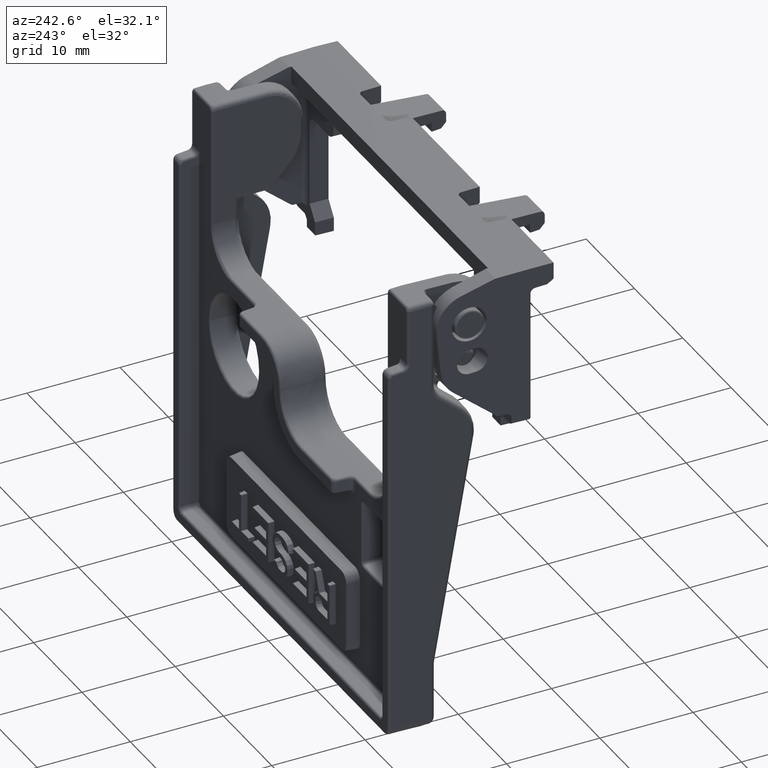
[diagram: clean part render]
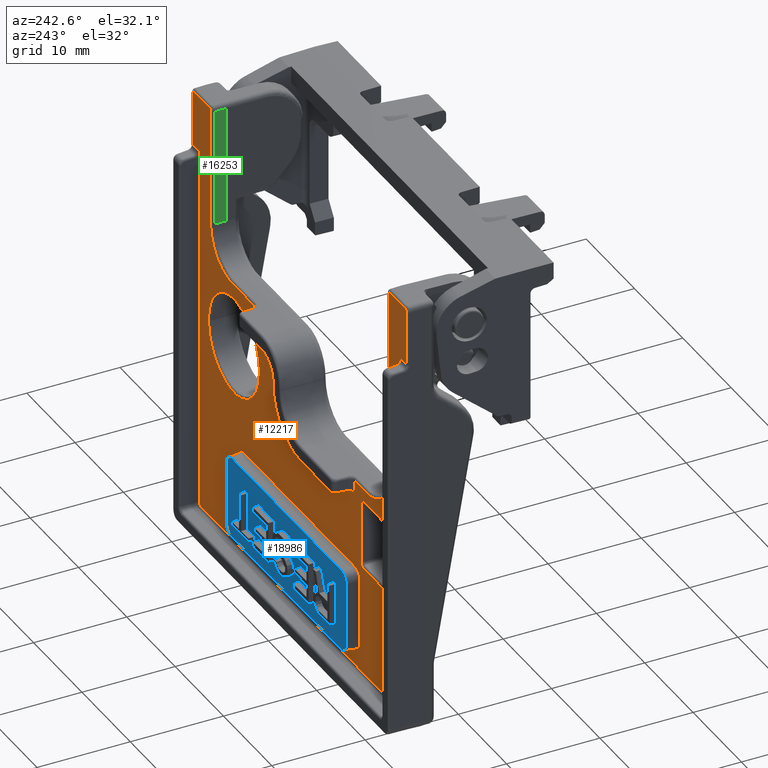
[diagram: same view with three faces highlighted in distinct colors, each labeled with its STEP entity id]
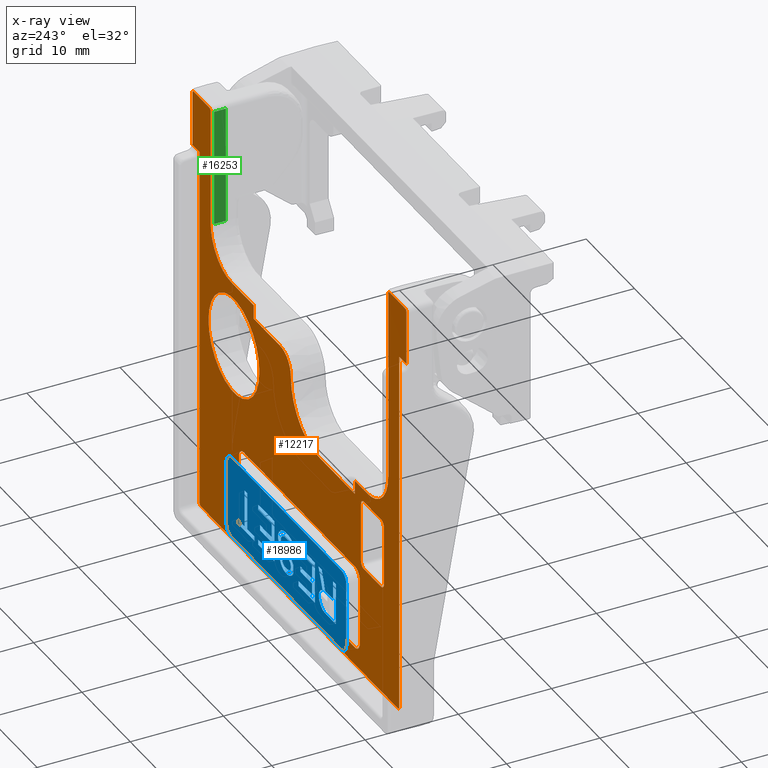
[diagram: x-ray of the same camera — body ghosted, the three highlighted faces saturated]
A machine part, auxiliary view with three faces highlighted in distinct colors.
The next image is the same camera in x-ray (body ghosted, the three faces saturated) — at least one of them is partly hidden behind the body in this view.
Their STEP definitions:

[orange] entity #12217 — the highlighted planar face has unit normal (0, 1, 0).
#5563=DIRECTION('',(0.E0,0.E0,-1.E0));
#5564=VECTOR('',#5563,7.107610603817E0);
#5565=CARTESIAN_POINT('',(1.25E1,3.E0,-5.506194698092E0));
#5566=LINE('',#5565,#5564);
#5567=DIRECTION('',(-1.E0,0.E0,0.E0));
#5568=VECTOR('',#5567,2.300761060382E1);
#5569=CARTESIAN_POINT('',(1.150380530191E1,3.E0,-1.361E1));
#5570=LINE('',#5569,#5568);
#5571=DIRECTION('',(0.E0,0.E0,1.E0));
#5572=VECTOR('',#5571,7.107610603817E0);
#5573=CARTESIAN_POINT('',(-1.25E1,3.E0,-1.261380530191E1));
#5574=LINE('',#5573,#5572);
#5575=DIRECTION('',(1.E0,0.E0,0.E0));
#5576=VECTOR('',#5575,2.300761060382E1);
#5577=CARTESIAN_POINT('',(-1.150380530191E1,3.E0,-4.51E0));
#5578=LINE('',#5577,#5576);
#5579=CARTESIAN_POINT('',(-1.69E1,2.999999999843E0,-3.2E0));
#5580=DIRECTION('',(0.E0,-1.E0,0.E0));
#5581=DIRECTION('',(-1.E0,0.E0,0.E0));
#5582=AXIS2_PLACEMENT_3D('',#5579,#5580,#5581);
#5594=DIRECTION('',(1.E0,0.E0,2.264854970064E-12));
#5595=VECTOR('',#5594,3.600000000272E0);
#5596=CARTESIAN_POINT('',(-1.689999999989E1,3.E0,-3.771856913167E0));
#5597=LINE('',#5596,#5595);
#5607=CARTESIAN_POINT('',(-1.33E1,2.999999999843E0,-3.2E0));
#5608=DIRECTION('',(0.E0,-1.E0,0.E0));
#5609=DIRECTION('',(0.E0,0.E0,-1.E0));
#5610=AXIS2_PLACEMENT_3D('',#5607,#5608,#5609);
#5622=DIRECTION('',(-1.273425809191E-12,0.E0,1.E0));
#5623=VECTOR('',#5622,6.400000000272E0);
#5624=CARTESIAN_POINT('',(-1.272814308683E1,3.E0,-3.199999999894E0));
#5625=LINE('',#5624,#5623);
#5635=CARTESIAN_POINT('',(-1.33E1,2.999999999843E0,3.2E0));
#5636=DIRECTION('',(0.E0,-1.E0,0.E0));
#5637=DIRECTION('',(1.E0,0.E0,0.E0));
#5638=AXIS2_PLACEMENT_3D('',#5635,#5636,#5637);
#5650=DIRECTION('',(-1.E0,0.E0,-2.264608253836E-12));
#5651=VECTOR('',#5650,3.600000000272E0);
#5652=CARTESIAN_POINT('',(-1.330000000011E1,3.E0,3.771856913167E0));
#5653=LINE('',#5652,#5651);
#5663=CARTESIAN_POINT('',(-1.69E1,2.999999999843E0,3.2E0));
#5664=DIRECTION('',(0.E0,-1.E0,0.E0));
#5665=DIRECTION('',(0.E0,0.E0,1.E0));
#5666=AXIS2_PLACEMENT_3D('',#5663,#5664,#5665);
#5678=DIRECTION('',(1.273980920703E-12,0.E0,-1.E0));
#5679=VECTOR('',#5678,6.400000000272E0);
#5680=CARTESIAN_POINT('',(-1.747185691317E1,3.E0,3.199999999894E0));
#5681=LINE('',#5680,#5679);
#7260=CARTESIAN_POINT('',(1.837185691317E1,2.999999999993E0,3.002818116304E1));
#7261=CARTESIAN_POINT('',(1.837185144311E1,2.999999999993E0,3.004821843481E1));
#7262=CARTESIAN_POINT('',(1.837641111637E1,3.000000000003E0,3.008805922686E1));
#7263=CARTESIAN_POINT('',(1.840022431502E1,2.999999999999E0,3.015036152343E1));
#7264=CARTESIAN_POINT('',(1.844126932902E1,3.E0,3.020555050713E1));
#7265=CARTESIAN_POINT('',(1.849601519053E1,3.E0,3.024785633069E1));
#7266=CARTESIAN_POINT('',(1.855952618922E1,3.E0,3.027316793115E1));
#7267=CARTESIAN_POINT('',(1.860084229342E1,3.E0,3.027814163201E1));
#7268=CARTESIAN_POINT('',(1.862181883696E1,3.E0,3.027814308683E1));
#7285=DIRECTION('',(1.E0,0.E0,0.E0));
#7286=VECTOR('',#7285,3.256362326079E0);
#7287=CARTESIAN_POINT('',(1.862181883696E1,3.E0,3.027814308683E1));
#7288=LINE('',#7287,#7286);
#7298=CARTESIAN_POINT('',(2.187818116304E1,3.E0,3.027814308683E1));
#7299=CARTESIAN_POINT('',(2.189915770975E1,3.E0,3.027814169178E1));
#7300=CARTESIAN_POINT('',(2.194047381578E1,3.E0,3.027316792692E1));
#7301=CARTESIAN_POINT('',(2.200398480115E1,3.E0,3.024785630995E1));
#7302=CARTESIAN_POINT('',(2.205873064405E1,3.E0,3.020555049764E1));
#7303=CARTESIAN_POINT('',(2.209977578338E1,2.999999999999E0,3.015036156455E1));
#7304=CARTESIAN_POINT('',(2.212358873853E1,3.000000000003E0,3.008805919419E1));
#7305=CARTESIAN_POINT('',(2.212814857057E1,2.999999999993E0,3.004821842012E1));
#7306=CARTESIAN_POINT('',(2.212814308683E1,2.999999999993E0,3.002818116304E1));
#7323=DIRECTION('',(1.116252041857E-13,2.128153362136E-7,-1.E0));
#7324=VECTOR('',#7323,5.856198173774E0);
#7325=CARTESIAN_POINT('',(2.212814308683E1,2.999999999993E0,3.002818116304E1));
#7326=LINE('',#7325,#7324);
#7365=DIRECTION('',(-9.999999999996E-1,-8.468684547497E-7,-2.947643655941E-8));
#7366=VECTOR('',#7365,1.471634763774E0);
#7367=CARTESIAN_POINT('',(2.212814308683E1,3.000001246282E0,2.417198298927E1));
#7368=LINE('',#7367,#7366);
#7454=CARTESIAN_POINT('',(2.065650828161E1,3.000000000108E0,-1.526654635782E1));
#7455=CARTESIAN_POINT('',(2.065651863291E1,3.000000000108E0,-1.529270568551E1));
#7456=CARTESIAN_POINT('',(2.064882129076E1,2.999999999951E0,-1.534278952084E1));
#7457=CARTESIAN_POINT('',(2.061268938490E1,3.000000000009E0,-1.541552703981E1));
#7458=CARTESIAN_POINT('',(2.055517890124E1,3.000000000013E0,-1.547292870551E1));
#7459=CARTESIAN_POINT('',(2.048251592484E1,2.999999999938E0,-1.550888751556E1));
#7460=CARTESIAN_POINT('',(2.043259513600E1,3.000000000137E0,-1.551651556059E1));
#7461=CARTESIAN_POINT('',(2.040654635782E1,3.000000000137E0,-1.551650828161E1));
#7463=DIRECTION('',(-1.050801635857E-9,2.736295096588E-12,-1.E0));
#7464=VECTOR('',#7463,3.943852930371E1);
#7465=CARTESIAN_POINT('',(2.065650832306E1,3.000000000001E0,2.417198294589E1));
#7466=LINE('',#7465,#7464);
#7471=CARTESIAN_POINT('',(2.065650832306E1,3.000000000001E0,2.417198294589E1));
#7508=DIRECTION('',(-1.E0,-6.925351638270E-13,0.E0));
#7509=VECTOR('',#7508,4.081309271565E1);
#7510=CARTESIAN_POINT('',(2.040654635782E1,3.000000000137E0,-1.551650828161E1));
#7511=LINE('',#7510,#7509);
#7580=CARTESIAN_POINT('',(-2.040654635782E1,3.000000000108E0,
-1.551650828161E1));
#7581=CARTESIAN_POINT('',(-2.043270568551E1,3.000000000108E0,
-1.551651863291E1));
#7582=CARTESIAN_POINT('',(-2.048278952084E1,2.999999999951E0,
-1.550882129076E1));
#7583=CARTESIAN_POINT('',(-2.055552703981E1,3.000000000009E0,
-1.547268938490E1));
#7584=CARTESIAN_POINT('',(-2.061292870551E1,3.000000000013E0,
-1.541517890124E1));
#7585=CARTESIAN_POINT('',(-2.064888751556E1,2.999999999938E0,
-1.534251592484E1));
#7586=CARTESIAN_POINT('',(-2.065651556059E1,3.000000000137E0,
-1.529259513600E1));
#7587=CARTESIAN_POINT('',(-2.065650828161E1,3.000000000137E0,
-1.526654635782E1));
#7598=DIRECTION('',(-1.050437883503E-9,-3.452967405345E-12,1.E0));
#7599=VECTOR('',#7598,3.943852930373E1);
#7600=CARTESIAN_POINT('',(-2.065650828161E1,3.000000000137E0,
-1.526654635782E1));
#7601=LINE('',#7600,#7599);
#7614=CARTESIAN_POINT('',(-2.065650832304E1,3.000000000001E0,2.417198294590E1));
#7635=DIRECTION('',(-9.999999999996E-1,8.469133149604E-7,2.946549332001E-8));
#7636=VECTOR('',#7635,1.471634763789E0);
#7637=CARTESIAN_POINT('',(-2.065650832304E1,3.000000000001E0,2.417198294590E1));
#7638=LINE('',#7637,#7636);
#7651=CARTESIAN_POINT('',(-2.212814308683E1,3.000001246348E0,2.417198298926E1));
#7668=DIRECTION('',(1.116252041857E-13,-2.128266211274E-7,1.E0));
#7669=VECTOR('',#7668,5.856198173775E0);
#7670=CARTESIAN_POINT('',(-2.212814308683E1,3.000001246348E0,2.417198298926E1));
#7671=LINE('',#7670,#7669);
#7681=CARTESIAN_POINT('',(-2.212814308683E1,2.999999999993E0,3.002818116304E1));
#7682=CARTESIAN_POINT('',(-2.212814855689E1,2.999999999993E0,3.004821843481E1));
#7683=CARTESIAN_POINT('',(-2.212358888363E1,3.000000000003E0,3.008805922686E1));
#7684=CARTESIAN_POINT('',(-2.209977568498E1,2.999999999999E0,3.015036152343E1));
#7685=CARTESIAN_POINT('',(-2.205873067098E1,3.E0,3.020555050713E1));
#7686=CARTESIAN_POINT('',(-2.200398480947E1,3.E0,3.024785633069E1));
#7687=CARTESIAN_POINT('',(-2.194047381078E1,3.E0,3.027316793115E1));
#7688=CARTESIAN_POINT('',(-2.189915770658E1,3.E0,3.027814163201E1));
#7689=CARTESIAN_POINT('',(-2.187818116304E1,3.E0,3.027814308683E1));
#7706=DIRECTION('',(1.E0,0.E0,0.E0));
#7707=VECTOR('',#7706,3.256362326079E0);
#7708=CARTESIAN_POINT('',(-2.187818116304E1,3.E0,3.027814308683E1));
#7709=LINE('',#7708,#7707);
#7719=CARTESIAN_POINT('',(-1.862181883696E1,3.E0,3.027814308683E1));
#7720=CARTESIAN_POINT('',(-1.860084229025E1,3.E0,3.027814169178E1));
#7721=CARTESIAN_POINT('',(-1.855952618422E1,3.E0,3.027316792692E1));
#7722=CARTESIAN_POINT('',(-1.849601519885E1,3.E0,3.024785630995E1));
#7723=CARTESIAN_POINT('',(-1.844126935595E1,3.E0,3.020555049764E1));
#7724=CARTESIAN_POINT('',(-1.840022421662E1,2.999999999999E0,3.015036156455E1));
#7725=CARTESIAN_POINT('',(-1.837641126147E1,3.000000000003E0,3.008805919419E1));
#7726=CARTESIAN_POINT('',(-1.837185142943E1,2.999999999993E0,3.004821842012E1));
#7727=CARTESIAN_POINT('',(-1.837185691317E1,2.999999999993E0,3.002818116304E1));
#7744=DIRECTION('',(1.940250609031E-12,-2.664031402728E-8,-1.E0));
#7745=VECTOR('',#7744,2.065068537179E1);
#7746=CARTESIAN_POINT('',(-1.837185691317E1,2.999999999993E0,3.002818116304E1));
#7747=LINE('',#7746,#7745);
#7757=CARTESIAN_POINT('',(-1.837185691313E1,2.999999449852E0,9.377495791252E0));
#7758=CARTESIAN_POINT('',(-1.837181500596E1,2.999997264365E0,9.094887913264E0));
#7759=CARTESIAN_POINT('',(-1.831687652378E1,3.000001270030E0,8.542307251452E0));
#7760=CARTESIAN_POINT('',(-1.807142040998E1,2.999999658347E0,7.734565348223E0));
#7761=CARTESIAN_POINT('',(-1.767605132996E1,3.000000096580E0,6.998263125931E0));
#7762=CARTESIAN_POINT('',(-1.714694525822E1,2.999999955333E0,6.353936327246E0));
#7763=CARTESIAN_POINT('',(-1.650268095588E1,3.000000082088E0,5.824560935964E0));
#7764=CARTESIAN_POINT('',(-1.576620848378E1,2.999999716316E0,5.428882279323E0));
#7765=CARTESIAN_POINT('',(-1.495837346469E1,3.000001052649E0,5.183241386191E0));
#7766=CARTESIAN_POINT('',(-1.440537565243E1,2.999997732943E0,5.128182425279E0));
#7767=CARTESIAN_POINT('',(-1.412250420875E1,2.999999675666E0,5.128143086844E0));
#7786=DIRECTION('',(9.999999999998E-1,5.894955383438E-7,-5.369729607899E-12));
#7787=VECTOR('',#7786,2.664338622094E0);
#7788=CARTESIAN_POINT('',(-1.412250420875E1,2.999999675666E0,5.128143086844E0));
#7789=LINE('',#7788,#7787);
#7824=DIRECTION('',(-2.334113947166E-10,-8.296690371955E-7,-9.999999999997E-1));
#7825=VECTOR('',#7824,1.502143086830E0);
#7826=CARTESIAN_POINT('',(-1.145816558666E1,3.000001246282E0,5.128143086829E0));
#7827=LINE('',#7826,#7825);
#7837=DIRECTION('',(1.E0,0.E0,0.E0));
#7838=VECTOR('',#7837,7.458165587009E0);
#7839=CARTESIAN_POINT('',(-1.145816558701E1,3.E0,3.626E0));
#7840=LINE('',#7839,#7838);
#7864=CARTESIAN_POINT('',(-4.E0,3.E0,9.4E0));
#7865=DIRECTION('',(0.E0,-1.E0,0.E0));
#7866=DIRECTION('',(0.E0,0.E0,-1.E0));
#7867=AXIS2_PLACEMENT_3D('',#7864,#7865,#7866);
#7886=DIRECTION('',(2.664535259100E-13,0.E0,1.E0));
#7887=VECTOR('',#7886,4.E-2);
#7888=CARTESIAN_POINT('',(1.774E0,3.E0,9.4E0));
#7889=LINE('',#7888,#7887);
#7900=CARTESIAN_POINT('',(4.E0,3.000000000003E0,9.44E0));
#7901=DIRECTION('',(0.E0,1.E0,0.E0));
#7902=DIRECTION('',(-1.E0,0.E0,0.E0));
#7903=AXIS2_PLACEMENT_3D('',#7900,#7901,#7902);
#7922=DIRECTION('',(1.E0,0.E0,0.E0));
#7923=VECTOR('',#7922,5.458165587009E0);
#7924=CARTESIAN_POINT('',(4.E0,3.E0,1.1666E1));
#7925=LINE('',#7924,#7923);
#7939=DIRECTION('',(-2.340594312162E-10,8.297129866052E-7,9.999999999997E-1));
#7940=VECTOR('',#7939,1.502143086830E0);
#7941=CARTESIAN_POINT('',(9.458165587009E0,3.E0,1.1666E1));
#7942=LINE('',#7941,#7940);
#7955=CARTESIAN_POINT('',(9.458165586657E0,3.000001246348E0,1.316814308683E1));
#7972=DIRECTION('',(9.999999999999E-1,-3.367300626669E-7,3.067649135418E-12));
#7973=VECTOR('',#7972,4.664338622095E0);
#7974=CARTESIAN_POINT('',(9.458165586657E0,3.000001246348E0,1.316814308683E1));
#7975=LINE('',#7974,#7973);
#7985=CARTESIAN_POINT('',(1.412250420875E1,2.999999675725E0,1.316814308684E1));
#7986=CARTESIAN_POINT('',(1.440537565200E1,2.999997733508E0,1.316818242461E1));
#7987=CARTESIAN_POINT('',(1.495837346369E1,3.000001052386E0,1.322324139204E1));
#7988=CARTESIAN_POINT('',(1.576620848462E1,2.999999716386E0,1.346888227630E1));
#7989=CARTESIAN_POINT('',(1.650268095576E1,3.000000082071E0,1.386456093680E1));
#7990=CARTESIAN_POINT('',(1.714694525749E1,2.999999955331E0,1.439393632744E1));
#7991=CARTESIAN_POINT('',(1.767605133233E1,3.000000096604E0,1.503826312498E1));
#7992=CARTESIAN_POINT('',(1.807142040401E1,2.999999658254E0,1.577456534997E1));
#7993=CARTESIAN_POINT('',(1.831687653480E1,3.000001270382E0,1.658230724980E1));
#7994=CARTESIAN_POINT('',(1.837181500116E1,2.999997263607E0,1.713488791259E1));
#7995=CARTESIAN_POINT('',(1.837185691313E1,2.999999449731E0,1.741749579125E1));
#8014=DIRECTION('',(3.177266237975E-12,4.363458048057E-8,1.E0));
#8015=VECTOR('',#8014,1.261068537179E1);
#8016=CARTESIAN_POINT('',(1.837185691313E1,2.999999449731E0,1.741749579125E1));
#8017=LINE('',#8016,#8015);
#9043=CARTESIAN_POINT('',(1.355E1,2.999999999999E0,6.34E0));
#9044=DIRECTION('',(0.E0,-1.E0,0.E0));
#9045=DIRECTION('',(1.E0,0.E0,0.E0));
#9046=AXIS2_PLACEMENT_3D('',#9043,#9044,#9045);
#9058=CARTESIAN_POINT('',(1.355E1,2.999999999999E0,6.34E0));
#9059=DIRECTION('',(0.E0,-1.E0,0.E0));
#9060=DIRECTION('',(-1.E0,0.E0,0.E0));
#9061=AXIS2_PLACEMENT_3D('',#9058,#9059,#9060);
#9499=CARTESIAN_POINT('',(1.25E1,3.E0,-5.506194698092E0));
#9500=CARTESIAN_POINT('',(1.25E1,3.E0,-5.340162248410E0));
#9501=CARTESIAN_POINT('',(1.242829605921E1,3.E0,-5.079801289832E0));
#9502=CARTESIAN_POINT('',(1.222339446318E1,3.E0,-4.786605536825E0));
#9503=CARTESIAN_POINT('',(1.193019871017E1,3.E0,-4.581703940787E0));
#9504=CARTESIAN_POINT('',(1.166983775159E1,3.E0,-4.51E0));
#9505=CARTESIAN_POINT('',(1.150380530191E1,3.E0,-4.51E0));
#9523=CARTESIAN_POINT('',(-1.150380530191E1,3.E0,-4.51E0));
#9524=CARTESIAN_POINT('',(-1.166983775159E1,3.E0,-4.51E0));
#9525=CARTESIAN_POINT('',(-1.193019871017E1,3.E0,-4.581703940787E0));
#9526=CARTESIAN_POINT('',(-1.222339446318E1,3.E0,-4.786605536825E0));
#9527=CARTESIAN_POINT('',(-1.242829605921E1,3.E0,-5.079801289832E0));
#9528=CARTESIAN_POINT('',(-1.25E1,3.E0,-5.340162248410E0));
#9529=CARTESIAN_POINT('',(-1.25E1,3.E0,-5.506194698092E0));
#9547=CARTESIAN_POINT('',(-1.25E1,3.E0,-1.261380530191E1));
#9548=CARTESIAN_POINT('',(-1.25E1,3.E0,-1.277983775159E1));
#9549=CARTESIAN_POINT('',(-1.242829605921E1,3.E0,-1.304019871017E1));
#9550=CARTESIAN_POINT('',(-1.222339446318E1,3.E0,-1.333339446318E1));
#9551=CARTESIAN_POINT('',(-1.193019871017E1,3.E0,-1.353829605921E1));
#9552=CARTESIAN_POINT('',(-1.166983775159E1,3.E0,-1.361E1));
#9553=CARTESIAN_POINT('',(-1.150380530191E1,3.E0,-1.361E1));
#9571=CARTESIAN_POINT('',(1.150380530191E1,3.E0,-1.361E1));
#9572=CARTESIAN_POINT('',(1.166983775159E1,3.E0,-1.361E1));
#9573=CARTESIAN_POINT('',(1.193019871017E1,3.E0,-1.353829605921E1));
#9574=CARTESIAN_POINT('',(1.222339446318E1,3.E0,-1.333339446318E1));
#9575=CARTESIAN_POINT('',(1.242829605921E1,3.E0,-1.304019871017E1));
#9576=CARTESIAN_POINT('',(1.25E1,3.E0,-1.277983775159E1));
#9577=CARTESIAN_POINT('',(1.25E1,3.E0,-1.261380530191E1));
#11228=CARTESIAN_POINT('',(-1.747184805361E1,2.999999999843E0,-3.2E0));
#11229=CARTESIAN_POINT('',(-1.69E1,2.999999999843E0,-3.771848053606E0));
#11230=VERTEX_POINT('',#11228);
#11231=VERTEX_POINT('',#11229);
#11236=CARTESIAN_POINT('',(-1.329999999962E1,3.E0,-3.771856913158E0));
#11237=VERTEX_POINT('',#11236);
#11240=CARTESIAN_POINT('',(-1.272815194639E1,2.999999999843E0,-3.2E0));
#11241=VERTEX_POINT('',#11240);
#11244=CARTESIAN_POINT('',(-1.272814308684E1,3.E0,3.200000000378E0));
#11245=VERTEX_POINT('',#11244);
#11248=CARTESIAN_POINT('',(-1.33E1,2.999999999843E0,3.771848053606E0));
#11249=VERTEX_POINT('',#11248);
#11252=CARTESIAN_POINT('',(-1.690000000038E1,3.E0,3.771856913158E0));
#11253=VERTEX_POINT('',#11252);
#11256=CARTESIAN_POINT('',(-1.747184805361E1,2.999999999843E0,3.2E0));
#11257=VERTEX_POINT('',#11256);
#11260=CARTESIAN_POINT('',(1.882185628967E1,2.999999999999E0,6.34E0));
#11261=CARTESIAN_POINT('',(8.278143710325E0,2.999999999999E0,6.34E0));
#11262=VERTEX_POINT('',#11260);
#11263=VERTEX_POINT('',#11261);
#11827=CARTESIAN_POINT('',(1.150380530191E1,3.E0,-4.51E0));
#11829=VERTEX_POINT('',#11827);
#11831=CARTESIAN_POINT('',(1.25E1,3.E0,-5.506194698092E0));
#11832=VERTEX_POINT('',#11831);
#11834=CARTESIAN_POINT('',(1.25E1,3.E0,-1.261380530191E1));
#11836=VERTEX_POINT('',#11834);
#11838=CARTESIAN_POINT('',(1.150380530191E1,3.E0,-1.361E1));
#11839=VERTEX_POINT('',#11838);
#11841=CARTESIAN_POINT('',(-1.150380530191E1,3.E0,-1.361E1));
#11843=VERTEX_POINT('',#11841);
#11845=CARTESIAN_POINT('',(-1.25E1,3.E0,-1.261380530191E1));
#11846=VERTEX_POINT('',#11845);
#11848=CARTESIAN_POINT('',(-1.25E1,3.E0,-5.506194698092E0));
#11850=VERTEX_POINT('',#11848);
#11852=CARTESIAN_POINT('',(-1.150380530191E1,3.E0,-4.51E0));
#11853=VERTEX_POINT('',#11852);
#11856=VERTEX_POINT('',#7580);
#11857=VERTEX_POINT('',#7587);
#11860=CARTESIAN_POINT('',(2.040654635782E1,3.000000000137E0,
-1.551650828161E1));
#11861=VERTEX_POINT('',#11860);
#11863=VERTEX_POINT('',#7454);
#11890=VERTEX_POINT('',#7651);
#11892=CARTESIAN_POINT('',(-2.212814308683E1,2.999999999993E0,
3.002818116304E1));
#11893=VERTEX_POINT('',#11892);
#11896=VERTEX_POINT('',#7689);
#11898=CARTESIAN_POINT('',(-1.862181883696E1,3.E0,3.027814308683E1));
#11899=VERTEX_POINT('',#11898);
#11902=VERTEX_POINT('',#7727);
#11904=CARTESIAN_POINT('',(-1.837185691313E1,2.999999449852E0,
9.377495791252E0));
#11905=VERTEX_POINT('',#11904);
#11908=VERTEX_POINT('',#7767);
#11910=CARTESIAN_POINT('',(-1.145816558666E1,3.000001246282E0,
5.128143086829E0));
#11911=VERTEX_POINT('',#11910);
#11948=VERTEX_POINT('',#7955);
#11950=CARTESIAN_POINT('',(1.412250420875E1,2.999999675725E0,1.316814308684E1));
#11951=VERTEX_POINT('',#11950);
#11954=VERTEX_POINT('',#7995);
#11956=CARTESIAN_POINT('',(1.837185691317E1,2.999999999993E0,3.002818116304E1));
#11957=VERTEX_POINT('',#11956);
#11960=VERTEX_POINT('',#7268);
#11962=CARTESIAN_POINT('',(2.187818116304E1,3.E0,3.027814308683E1));
#11963=VERTEX_POINT('',#11962);
#11966=VERTEX_POINT('',#7306);
#11968=CARTESIAN_POINT('',(2.212814308683E1,3.000001246282E0,2.417198298927E1));
#11969=VERTEX_POINT('',#11968);
#11981=VERTEX_POINT('',#7614);
#12015=VERTEX_POINT('',#7471);
#12020=CARTESIAN_POINT('',(4.E0,3.E0,1.1666E1));
#12021=CARTESIAN_POINT('',(9.458165587009E0,3.E0,1.1666E1));
#12022=VERTEX_POINT('',#12020);
#12023=VERTEX_POINT('',#12021);
#12026=CARTESIAN_POINT('',(1.774001250124E0,3.000000000003E0,9.44E0));
#12027=VERTEX_POINT('',#12026);
#12030=CARTESIAN_POINT('',(1.774E0,3.E0,9.4E0));
#12031=VERTEX_POINT('',#12030);
#12034=CARTESIAN_POINT('',(-4.E0,3.E0,3.626000291872E0));
#12035=VERTEX_POINT('',#12034);
#12036=CARTESIAN_POINT('',(-1.145816558701E1,3.E0,3.626E0));
#12037=VERTEX_POINT('',#12036);
#12112=CARTESIAN_POINT('',(0.E0,3.E0,0.E0));
#12113=DIRECTION('',(0.E0,1.E0,0.E0));
#12114=DIRECTION('',(1.E0,0.E0,0.E0));
#12115=AXIS2_PLACEMENT_3D('',#12112,#12113,#12114);
#12116=PLANE('',#12115);
#12118=ORIENTED_EDGE('',*,*,#12117,.F.);
#12120=ORIENTED_EDGE('',*,*,#12119,.F.);
#12122=ORIENTED_EDGE('',*,*,#12121,.F.);
#12124=ORIENTED_EDGE('',*,*,#12123,.F.);
#12126=ORIENTED_EDGE('',*,*,#12125,.F.);
#12128=ORIENTED_EDGE('',*,*,#12127,.F.);
#12130=ORIENTED_EDGE('',*,*,#12129,.F.);
#12132=ORIENTED_EDGE('',*,*,#12131,.F.);
#12134=ORIENTED_EDGE('',*,*,#12133,.F.);
#12136=ORIENTED_EDGE('',*,*,#12135,.F.);
#12138=ORIENTED_EDGE('',*,*,#12137,.F.);
#12140=ORIENTED_EDGE('',*,*,#12139,.F.);
#12142=ORIENTED_EDGE('',*,*,#12141,.F.);
#12144=ORIENTED_EDGE('',*,*,#12143,.F.);
#12146=ORIENTED_EDGE('',*,*,#12145,.F.);
#12148=ORIENTED_EDGE('',*,*,#12147,.F.);
#12150=ORIENTED_EDGE('',*,*,#12149,.F.);
#12152=ORIENTED_EDGE('',*,*,#12151,.F.);
#12154=ORIENTED_EDGE('',*,*,#12153,.F.);
#12156=ORIENTED_EDGE('',*,*,#12155,.F.);
#12158=ORIENTED_EDGE('',*,*,#12157,.F.);
#12160=ORIENTED_EDGE('',*,*,#12159,.F.);
#12162=ORIENTED_EDGE('',*,*,#12161,.F.);
#12164=ORIENTED_EDGE('',*,*,#12163,.F.);
#12166=ORIENTED_EDGE('',*,*,#12165,.F.);
#12168=ORIENTED_EDGE('',*,*,#12167,.F.);
#12170=ORIENTED_EDGE('',*,*,#12169,.F.);
#12172=ORIENTED_EDGE('',*,*,#12171,.F.);
#12173=EDGE_LOOP('',(#12118,#12120,#12122,#12124,#12126,#12128,#12130,#12132,
#12134,#12136,#12138,#12140,#12142,#12144,#12146,#12148,#12150,#12152,#12154,
#12156,#12158,#12160,#12162,#12164,#12166,#12168,#12170,#12172));
#12174=FACE_OUTER_BOUND('',#12173,.F.);
#12176=ORIENTED_EDGE('',*,*,#12175,.F.);
#12178=ORIENTED_EDGE('',*,*,#12177,.F.);
#12179=EDGE_LOOP('',(#12176,#12178));
#12180=FACE_BOUND('',#12179,.F.);
#12182=ORIENTED_EDGE('',*,*,#12181,.T.);
#12184=ORIENTED_EDGE('',*,*,#12183,.F.);
#12186=ORIENTED_EDGE('',*,*,#12185,.T.);
#12188=ORIENTED_EDGE('',*,*,#12187,.F.);
#12190=ORIENTED_EDGE('',*,*,#12189,.T.);
#12192=ORIENTED_EDGE('',*,*,#12191,.F.);
#12194=ORIENTED_EDGE('',*,*,#12193,.T.);
#12196=ORIENTED_EDGE('',*,*,#12195,.F.);
#12197=EDGE_LOOP('',(#12182,#12184,#12186,#12188,#12190,#12192,#12194,#12196));
#12198=FACE_BOUND('',#12197,.F.);
#12200=ORIENTED_EDGE('',*,*,#12199,.F.);
#12202=ORIENTED_EDGE('',*,*,#12201,.F.);
#12204=ORIENTED_EDGE('',*,*,#12203,.F.);
#12206=ORIENTED_EDGE('',*,*,#12205,.F.);
#12208=ORIENTED_EDGE('',*,*,#12207,.F.);
#12210=ORIENTED_EDGE('',*,*,#12209,.F.);
#12212=ORIENTED_EDGE('',*,*,#12211,.F.);
#12214=ORIENTED_EDGE('',*,*,#12213,.F.);
#12215=EDGE_LOOP('',(#12200,#12202,#12204,#12206,#12208,#12210,#12212,#12214));
#12216=FACE_BOUND('',#12215,.F.);
#12217=ADVANCED_FACE('',(#12174,#12180,#12198,#12216),#12116,.T.);
#5583=CIRCLE('',#5582,5.718480536060E-1);
#5611=CIRCLE('',#5610,5.718480536060E-1);
#5639=CIRCLE('',#5638,5.718480536060E-1);
#5667=CIRCLE('',#5666,5.718480536060E-1);
#7269=B_SPLINE_CURVE_WITH_KNOTS('',3,(#7260,#7261,#7262,#7263,#7264,#7265,#7266,
#7267,#7268),.UNSPECIFIED.,.F.,.F.,(4,1,1,1,1,1,4),(0.E0,1.666666666667E-1,
3.333333333333E-1,5.E-1,6.666666666667E-1,8.333333333333E-1,1.E0),
.UNSPECIFIED.);
#7307=B_SPLINE_CURVE_WITH_KNOTS('',3,(#7298,#7299,#7300,#7301,#7302,#7303,#7304,
#7305,#7306),.UNSPECIFIED.,.F.,.F.,(4,1,1,1,1,1,4),(0.E0,1.666666666667E-1,
3.333333333333E-1,5.E-1,6.666666666667E-1,8.333333333333E-1,1.E0),
.UNSPECIFIED.);
#7462=B_SPLINE_CURVE_WITH_KNOTS('',3,(#7454,#7455,#7456,#7457,#7458,#7459,#7460,
#7461),.UNSPECIFIED.,.F.,.F.,(4,1,1,1,1,4),(0.E0,2.E-1,4.E-1,6.E-1,8.E-1,1.E0),
.UNSPECIFIED.);
#7588=B_SPLINE_CURVE_WITH_KNOTS('',3,(#7580,#7581,#7582,#7583,#7584,#7585,#7586,
#7587),.UNSPECIFIED.,.F.,.F.,(4,1,1,1,1,4),(0.E0,2.E-1,4.E-1,6.E-1,8.E-1,1.E0),
.UNSPECIFIED.);
#7690=B_SPLINE_CURVE_WITH_KNOTS('',3,(#7681,#7682,#7683,#7684,#7685,#7686,#7687,
#7688,#7689),.UNSPECIFIED.,.F.,.F.,(4,1,1,1,1,1,4),(0.E0,1.666666666667E-1,
3.333333333333E-1,5.E-1,6.666666666667E-1,8.333333333333E-1,1.E0),
.UNSPECIFIED.);
#7728=B_SPLINE_CURVE_WITH_KNOTS('',3,(#7719,#7720,#7721,#7722,#7723,#7724,#7725,
#7726,#7727),.UNSPECIFIED.,.F.,.F.,(4,1,1,1,1,1,4),(0.E0,1.666666666667E-1,
3.333333333333E-1,5.E-1,6.666666666667E-1,8.333333333333E-1,1.E0),
.UNSPECIFIED.);
#7768=B_SPLINE_CURVE_WITH_KNOTS('',3,(#7757,#7758,#7759,#7760,#7761,#7762,#7763,
#7764,#7765,#7766,#7767),.UNSPECIFIED.,.F.,.F.,(4,1,1,1,1,1,1,1,4),(0.E0,
1.25E-1,2.5E-1,3.75E-1,5.E-1,6.25E-1,7.5E-1,8.75E-1,1.E0),.UNSPECIFIED.);
#7868=CIRCLE('',#7867,5.773999708128E0);
#7904=CIRCLE('',#7903,2.225998749876E0);
#7996=B_SPLINE_CURVE_WITH_KNOTS('',3,(#7985,#7986,#7987,#7988,#7989,#7990,#7991,
#7992,#7993,#7994,#7995),.UNSPECIFIED.,.F.,.F.,(4,1,1,1,1,1,1,1,4),(0.E0,
1.25E-1,2.5E-1,3.75E-1,5.E-1,6.25E-1,7.5E-1,8.75E-1,1.E0),.UNSPECIFIED.);
#9047=CIRCLE('',#9046,5.271856289675E0);
#9062=CIRCLE('',#9061,5.271856289675E0);
#9506=B_SPLINE_CURVE_WITH_KNOTS('',3,(#9499,#9500,#9501,#9502,#9503,#9504,
#9505),.UNSPECIFIED.,.F.,.F.,(4,1,1,1,4),(0.E0,2.5E-1,5.E-1,7.5E-1,1.E0),
.UNSPECIFIED.);
#9530=B_SPLINE_CURVE_WITH_KNOTS('',3,(#9523,#9524,#9525,#9526,#9527,#9528,
#9529),.UNSPECIFIED.,.F.,.F.,(4,1,1,1,4),(0.E0,2.5E-1,5.E-1,7.5E-1,1.E0),
.UNSPECIFIED.);
#9554=B_SPLINE_CURVE_WITH_KNOTS('',3,(#9547,#9548,#9549,#9550,#9551,#9552,
#9553),.UNSPECIFIED.,.F.,.F.,(4,1,1,1,4),(0.E0,2.5E-1,5.E-1,7.5E-1,1.E0),
.UNSPECIFIED.);
#9578=B_SPLINE_CURVE_WITH_KNOTS('',3,(#9571,#9572,#9573,#9574,#9575,#9576,
#9577),.UNSPECIFIED.,.F.,.F.,(4,1,1,1,4),(0.E0,2.5E-1,5.E-1,7.5E-1,1.E0),
.UNSPECIFIED.);
#12117=EDGE_CURVE('',#12022,#12023,#7925,.T.);
#12119=EDGE_CURVE('',#12027,#12022,#7904,.T.);
#12121=EDGE_CURVE('',#12031,#12027,#7889,.T.);
#12123=EDGE_CURVE('',#12035,#12031,#7868,.T.);
#12125=EDGE_CURVE('',#12037,#12035,#7840,.T.);
#12127=EDGE_CURVE('',#11911,#12037,#7827,.T.);
#12129=EDGE_CURVE('',#11908,#11911,#7789,.T.);
#12131=EDGE_CURVE('',#11905,#11908,#7768,.T.);
#12133=EDGE_CURVE('',#11902,#11905,#7747,.T.);
#12135=EDGE_CURVE('',#11899,#11902,#7728,.T.);
#12137=EDGE_CURVE('',#11896,#11899,#7709,.T.);
#12139=EDGE_CURVE('',#11893,#11896,#7690,.T.);
#12141=EDGE_CURVE('',#11890,#11893,#7671,.T.);
#12143=EDGE_CURVE('',#11981,#11890,#7638,.T.);
#12145=EDGE_CURVE('',#11857,#11981,#7601,.T.);
#12147=EDGE_CURVE('',#11856,#11857,#7588,.T.);
#12149=EDGE_CURVE('',#11861,#11856,#7511,.T.);
#12151=EDGE_CURVE('',#11863,#11861,#7462,.T.);
#12153=EDGE_CURVE('',#12015,#11863,#7466,.T.);
#12155=EDGE_CURVE('',#11969,#12015,#7368,.T.);
#12157=EDGE_CURVE('',#11966,#11969,#7326,.T.);
#12159=EDGE_CURVE('',#11963,#11966,#7307,.T.);
#12161=EDGE_CURVE('',#11960,#11963,#7288,.T.);
#12163=EDGE_CURVE('',#11957,#11960,#7269,.T.);
#12165=EDGE_CURVE('',#11954,#11957,#8017,.T.);
#12167=EDGE_CURVE('',#11951,#11954,#7996,.T.);
#12169=EDGE_CURVE('',#11948,#11951,#7975,.T.);
#12171=EDGE_CURVE('',#12023,#11948,#7942,.T.);
#12175=EDGE_CURVE('',#11262,#11263,#9047,.T.);
#12177=EDGE_CURVE('',#11263,#11262,#9062,.T.);
#12181=EDGE_CURVE('',#11832,#11836,#5566,.T.);
#12183=EDGE_CURVE('',#11839,#11836,#9578,.T.);
#12185=EDGE_CURVE('',#11839,#11843,#5570,.T.);
#12187=EDGE_CURVE('',#11846,#11843,#9554,.T.);
#12189=EDGE_CURVE('',#11846,#11850,#5574,.T.);
#12191=EDGE_CURVE('',#11853,#11850,#9530,.T.);
#12193=EDGE_CURVE('',#11853,#11829,#5578,.T.);
#12195=EDGE_CURVE('',#11832,#11829,#9506,.T.);
#12199=EDGE_CURVE('',#11230,#11231,#5583,.T.);
#12201=EDGE_CURVE('',#11257,#11230,#5681,.T.);
#12203=EDGE_CURVE('',#11253,#11257,#5667,.T.);
#12205=EDGE_CURVE('',#11249,#11253,#5653,.T.);
#12207=EDGE_CURVE('',#11245,#11249,#5639,.T.);
#12209=EDGE_CURVE('',#11241,#11245,#5625,.T.);
#12211=EDGE_CURVE('',#11237,#11241,#5611,.T.);
#12213=EDGE_CURVE('',#11231,#11237,#5597,.T.);

[blue] entity #18986 — the highlighted planar face has unit normal (0, 1, 0).
#9487=CARTESIAN_POINT('',(1.138158363896E1,4.397E0,-4.632221662946E0));
#9488=CARTESIAN_POINT('',(1.154761608864E1,4.397E0,-4.632221662946E0));
#9489=CARTESIAN_POINT('',(1.180797704722E1,4.397E0,-4.703925603732E0));
#9490=CARTESIAN_POINT('',(1.210117280023E1,4.397E0,-4.908827199771E0));
#9491=CARTESIAN_POINT('',(1.230607439627E1,4.397E0,-5.202022952778E0));
#9492=CARTESIAN_POINT('',(1.237777833705E1,4.397E0,-5.462383911356E0));
#9493=CARTESIAN_POINT('',(1.237777833705E1,4.397E0,-5.628416361037E0));
#9511=CARTESIAN_POINT('',(-1.237777833705E1,4.397E0,-5.628416361037E0));
#9512=CARTESIAN_POINT('',(-1.237777833705E1,4.397E0,-5.462383911356E0));
#9513=CARTESIAN_POINT('',(-1.230607439627E1,4.397E0,-5.202022952778E0));
#9514=CARTESIAN_POINT('',(-1.210117280023E1,4.397E0,-4.908827199771E0));
#9515=CARTESIAN_POINT('',(-1.180797704722E1,4.397E0,-4.703925603732E0));
#9516=CARTESIAN_POINT('',(-1.154761608864E1,4.397E0,-4.632221662946E0));
#9517=CARTESIAN_POINT('',(-1.138158363896E1,4.397E0,-4.632221662946E0));
#9535=CARTESIAN_POINT('',(-1.138158363896E1,4.397E0,-1.348777833705E1));
#9536=CARTESIAN_POINT('',(-1.154761608864E1,4.397E0,-1.348777833705E1));
#9537=CARTESIAN_POINT('',(-1.180797704722E1,4.397E0,-1.341607439627E1));
#9538=CARTESIAN_POINT('',(-1.210117280023E1,4.397E0,-1.321117280023E1));
#9539=CARTESIAN_POINT('',(-1.230607439627E1,4.397E0,-1.291797704722E1));
#9540=CARTESIAN_POINT('',(-1.237777833705E1,4.397E0,-1.265761608864E1));
#9541=CARTESIAN_POINT('',(-1.237777833705E1,4.397E0,-1.249158363896E1));
#9559=CARTESIAN_POINT('',(1.237777833705E1,4.397E0,-1.249158363896E1));
#9560=CARTESIAN_POINT('',(1.237777833705E1,4.397E0,-1.265761608864E1));
#9561=CARTESIAN_POINT('',(1.230607439627E1,4.397E0,-1.291797704722E1));
#9562=CARTESIAN_POINT('',(1.210117280023E1,4.397E0,-1.321117280023E1));
#9563=CARTESIAN_POINT('',(1.180797704722E1,4.397E0,-1.341607439627E1));
#9564=CARTESIAN_POINT('',(1.154761608864E1,4.397E0,-1.348777833705E1));
#9565=CARTESIAN_POINT('',(1.138158363896E1,4.397E0,-1.348777833705E1));
#9579=DIRECTION('',(1.E0,0.E0,0.E0));
#9580=VECTOR('',#9579,1.593749955297E0);
#9581=CARTESIAN_POINT('',(-9.6375E0,4.397E0,-8.810638326406E0));
#9582=LINE('',#9581,#9580);
#9583=DIRECTION('',(3.494930736926E-1,0.E0,9.369389475526E-1));
#9584=VECTOR('',#9583,2.145965147098E0);
#9585=CARTESIAN_POINT('',(-8.043750044703E0,4.397E0,-8.810638326406E0));
#9586=LINE('',#9585,#9584);
#9587=DIRECTION('',(1.E0,0.E0,0.E0));
#9588=VECTOR('',#9587,6.562501788139E-1);
#9589=CARTESIAN_POINT('',(-7.293750089407E0,4.397E0,-6.8E0));
#9590=LINE('',#9589,#9588);
#9591=DIRECTION('',(-3.577885126009E-1,0.E0,-9.338026452366E-1));
#9592=VECTOR('',#9591,2.358236696495E0);
#9593=CARTESIAN_POINT('',(-6.637499910593E0,4.397E0,-6.8E0));
#9594=LINE('',#9593,#9592);
#9595=DIRECTION('',(8.906052429498E-1,0.E0,-4.547771995497E-1));
#9596=VECTOR('',#9595,4.210618717570E-1);
#9597=CARTESIAN_POINT('',(-7.481249910593E0,4.397E0,-9.002127665281E0));
#9598=LINE('',#9597,#9596);
#9599=DIRECTION('',(5.919095487496E-1,0.E0,-8.060043958311E-1));
#9600=VECTOR('',#9599,4.751570583616E-1);
#9601=CARTESIAN_POINT('',(-7.10625E0,4.397E0,-9.193617004156E0));
#9602=LINE('',#9601,#9600);
#9603=DIRECTION('',(3.102797975506E-1,0.E0,-9.506452793929E-1));
#9604=VECTOR('',#9603,3.021463573623E-1);
#9605=CARTESIAN_POINT('',(-6.825E0,4.397E0,-9.576595681906E0));
#9606=LINE('',#9605,#9604);
#9607=DIRECTION('',(0.E0,0.E0,-1.E0));
#9608=VECTOR('',#9607,3.829789459705E-1);
#9609=CARTESIAN_POINT('',(-6.731250089407E0,4.397E0,-9.863829690218E0));
#9610=LINE('',#9609,#9608);
#9611=DIRECTION('',(-3.102797975506E-1,0.E0,-9.506452793929E-1));
#9612=VECTOR('',#9611,3.021463573623E-1);
#9613=CARTESIAN_POINT('',(-6.731250089407E0,4.397E0,-1.024680863619E1));
#9614=LINE('',#9613,#9612);
#9615=DIRECTION('',(-5.919095487496E-1,0.E0,-8.060043958311E-1));
#9616=VECTOR('',#9615,4.751570583616E-1);
#9617=CARTESIAN_POINT('',(-6.825E0,4.397E0,-1.053404264450E1));
#9618=LINE('',#9617,#9616);
#9619=DIRECTION('',(-7.938781110087E-1,0.E0,-6.080769234738E-1));
#9620=VECTOR('',#9619,4.723645927416E-1);
#9621=CARTESIAN_POINT('',(-7.10625E0,4.397E0,-1.091702132225E1));
#9622=LINE('',#9621,#9620);
#9623=DIRECTION('',(-9.797707167625E-1,0.E0,-2.001233184181E-1));
#9624=VECTOR('',#9623,4.784283520494E-1);
#9625=CARTESIAN_POINT('',(-7.481249910593E0,4.397E0,-1.120425533056E1));
#9626=LINE('',#9625,#9624);
#9627=DIRECTION('',(-1.E0,0.E0,0.E0));
#9628=VECTOR('',#9627,2.25E0);
#9629=CARTESIAN_POINT('',(-7.95E0,4.397E0,-1.13E1));
#9630=LINE('',#9629,#9628);
#9631=DIRECTION('',(0.E0,0.E0,1.E0));
#9632=VECTOR('',#9631,4.5E0);
#9633=CARTESIAN_POINT('',(-1.02E1,4.397E0,-1.13E1));
#9634=LINE('',#9633,#9632);
#9635=DIRECTION('',(1.E0,0.E0,0.E0));
#9636=VECTOR('',#9635,5.625E-1);
#9637=CARTESIAN_POINT('',(-1.02E1,4.397E0,-6.8E0));
#9638=LINE('',#9637,#9636);
#9639=DIRECTION('',(0.E0,0.E0,-1.E0));
#9640=VECTOR('',#9639,2.010638326406E0);
#9641=CARTESIAN_POINT('',(-9.6375E0,4.397E0,-6.8E0));
#9642=LINE('',#9641,#9640);
#9683=DIRECTION('',(-1.E0,0.E0,0.E0));
#9684=VECTOR('',#9683,2.8125E0);
#9685=CARTESIAN_POINT('',(-2.512499821186E0,4.397E0,-7.374468083680E0));
#9686=LINE('',#9685,#9684);
#9687=DIRECTION('',(0.E0,0.E0,-1.E0));
#9688=VECTOR('',#9687,1.531914912164E0);
#9689=CARTESIAN_POINT('',(-5.324999821186E0,4.397E0,-7.374468083680E0));
#9690=LINE('',#9689,#9688);
#9691=DIRECTION('',(1.E0,0.E0,0.E0));
#9692=VECTOR('',#9691,2.437499821186E0);
#9693=CARTESIAN_POINT('',(-5.324999821186E0,4.397E0,-8.906382995844E0));
#9694=LINE('',#9693,#9692);
#9695=DIRECTION('',(0.E0,0.E0,-1.E0));
#9696=VECTOR('',#9695,5.744680166245E-1);
#9697=CARTESIAN_POINT('',(-2.8875E0,4.397E0,-8.906382995844E0));
#9698=LINE('',#9697,#9696);
#9699=DIRECTION('',(-1.E0,0.E0,0.E0));
#9700=VECTOR('',#9699,2.437499821186E0);
#9701=CARTESIAN_POINT('',(-2.8875E0,4.397E0,-9.480851012468E0));
#9702=LINE('',#9701,#9700);
#9703=DIRECTION('',(0.E0,0.E0,-1.E0));
#9704=VECTOR('',#9703,1.244680970907E0);
#9705=CARTESIAN_POINT('',(-5.324999821186E0,4.397E0,-9.480851012468E0));
#9706=LINE('',#9705,#9704);
#9707=DIRECTION('',(1.E0,0.E0,0.E0));
#9708=VECTOR('',#9707,2.8125E0);
#9709=CARTESIAN_POINT('',(-5.324999821186E0,4.397E0,-1.072553198338E1));
#9710=LINE('',#9709,#9708);
#9711=DIRECTION('',(0.E0,0.E0,-1.E0));
#9712=VECTOR('',#9711,5.744680166245E-1);
#9713=CARTESIAN_POINT('',(-2.512499821186E0,4.397E0,-1.072553198338E1));
#9714=LINE('',#9713,#9712);
#9715=DIRECTION('',(-1.E0,0.E0,0.E0));
#9716=VECTOR('',#9715,3.375000268221E0);
#9717=CARTESIAN_POINT('',(-2.512499821186E0,4.397E0,-1.13E1));
#9718=LINE('',#9717,#9716);
#9719=DIRECTION('',(0.E0,0.E0,1.E0));
#9720=VECTOR('',#9719,4.5E0);
#9721=CARTESIAN_POINT('',(-5.887500089407E0,4.397E0,-1.13E1));
#9722=LINE('',#9721,#9720);
#9723=DIRECTION('',(1.E0,0.E0,0.E0));
#9724=VECTOR('',#9723,3.375000268221E0);
#9725=CARTESIAN_POINT('',(-5.887500089407E0,4.397E0,-6.8E0));
#9726=LINE('',#9725,#9724);
#9727=DIRECTION('',(0.E0,0.E0,-1.E0));
#9728=VECTOR('',#9727,5.744680836797E-1);
#9729=CARTESIAN_POINT('',(-2.512499821186E0,4.397E0,-6.8E0));
#9730=LINE('',#9729,#9728);
#9731=DIRECTION('',(1.E0,0.E0,0.E0));
#9732=VECTOR('',#9731,5.625E-1);
#9733=CARTESIAN_POINT('',(8.624996423721E-1,4.397E0,-1.024680863619E1));
#9734=LINE('',#9733,#9732);
#9735=DIRECTION('',(-3.102789952956E-1,0.E0,-9.506455412394E-1));
#9736=VECTOR('',#9735,3.021462741389E-1);
#9737=CARTESIAN_POINT('',(1.424999642372E0,4.397E0,-1.024680863619E1));
#9738=LINE('',#9737,#9736);
#9739=DIRECTION('',(-5.919095487496E-1,0.E0,-8.060043958311E-1));
#9740=VECTOR('',#9739,4.751570583616E-1);
#9741=CARTESIAN_POINT('',(1.33125E0,4.397E0,-1.053404264450E1));
#9742=LINE('',#9741,#9740);
#9743=DIRECTION('',(-7.938779010506E-1,0.E0,-6.080771975856E-1));
#9744=VECTOR('',#9743,4.723643798069E-1);
#9745=CARTESIAN_POINT('',(1.05E0,4.397E0,-1.091702132225E1));
#9746=LINE('',#9745,#9744);
#9747=DIRECTION('',(-9.797707392153E-1,0.E0,-2.001232084928E-1));
#9748=VECTOR('',#9747,4.784286148444E-1);
#9749=CARTESIAN_POINT('',(6.750003576279E-1,4.397E0,-1.120425533056E1));
#9750=LINE('',#9749,#9748);
#9751=DIRECTION('',(-1.E0,0.E0,0.E0));
#9752=VECTOR('',#9751,4.687503576279E-1);
#9753=CARTESIAN_POINT('',(2.0625E-1,4.397E0,-1.13E1));
#9754=LINE('',#9753,#9752);
#9755=DIRECTION('',(-9.689176611437E-1,0.E0,2.473834390653E-1));
#9756=VECTOR('',#9755,3.870294220145E-1);
#9757=CARTESIAN_POINT('',(-2.625003576279E-1,4.397E0,-1.13E1));
#9758=LINE('',#9757,#9756);
#9759=DIRECTION('',(-8.906051112017E-1,0.E0,4.547774575564E-1));
#9760=VECTOR('',#9759,4.210616328781E-1);
#9761=CARTESIAN_POINT('',(-6.375E-1,4.397E0,-1.120425533056E1));
#9762=LINE('',#9761,#9760);
#9763=DIRECTION('',(-6.996250055017E-1,0.E0,7.145102180353E-1));
#9764=VECTOR('',#9763,5.360016807076E-1);
#9765=CARTESIAN_POINT('',(-1.012499642372E0,4.397E0,-1.101276599169E1));
#9766=LINE('',#9765,#9764);
#9767=DIRECTION('',(-2.377717803411E-1,0.E0,9.713210491251E-1));
#9768=VECTOR('',#9767,3.942863979882E-1);
#9769=CARTESIAN_POINT('',(-1.387499821186E0,4.397E0,-1.062978731394E1));
#9770=LINE('',#9769,#9768);
#9771=DIRECTION('',(0.E0,0.E0,1.E0));
#9772=VECTOR('',#9771,3.829789459705E-1);
#9773=CARTESIAN_POINT('',(-1.48125E0,4.397E0,-1.024680863619E1));
#9774=LINE('',#9773,#9772);
#9775=DIRECTION('',(2.377717803411E-1,0.E0,9.713210491251E-1));
#9776=VECTOR('',#9775,3.942863979882E-1);
#9777=CARTESIAN_POINT('',(-1.48125E0,4.397E0,-9.863829690218E0));
#9778=LINE('',#9777,#9776);
#9779=DIRECTION('',(6.996250055017E-1,0.E0,7.145102180353E-1));
#9780=VECTOR('',#9779,5.360016807076E-1);
#9781=CARTESIAN_POINT('',(-1.387499821186E0,4.397E0,-9.480851012468E0));
#9782=LINE('',#9781,#9780);
#9783=DIRECTION('',(8.906051112017E-1,0.E0,4.547774575564E-1));
#9784=VECTOR('',#9783,4.210616328781E-1);
#9785=CARTESIAN_POINT('',(-1.012499642372E0,4.397E0,-9.097872334719E0));
#9786=LINE('',#9785,#9784);
#9787=DIRECTION('',(9.689176611437E-1,0.E0,2.473834390653E-1));
#9788=VECTOR('',#9787,3.870294220145E-1);
#9789=CARTESIAN_POINT('',(-6.375E-1,4.397E0,-8.906382995844E0));
#9790=LINE('',#9789,#9788);
#9791=DIRECTION('',(1.E0,0.E0,0.E0));
#9792=VECTOR('',#9791,5.625E-1);
#9793=CARTESIAN_POINT('',(-2.625003576279E-1,4.397E0,-8.810638326406E0));
#9794=LINE('',#9793,#9792);
#9795=DIRECTION('',(9.689178307915E-1,0.E0,2.473827746112E-1));
#9796=VECTOR('',#9795,3.870304615505E-1);
#9797=CARTESIAN_POINT('',(2.999996423721E-1,4.397E0,-8.810638326406E0));
#9798=LINE('',#9797,#9796);
#9799=DIRECTION('',(8.265992787996E-1,0.E0,5.627909312417E-1));
#9800=VECTOR('',#9799,3.402495105106E-1);
#9801=CARTESIAN_POINT('',(6.750003576279E-1,4.397E0,-8.714893656969E0));
#9802=LINE('',#9801,#9800);
#9803=DIRECTION('',(5.466209055138E-1,0.E0,8.373801918216E-1));
#9804=VECTOR('',#9803,3.430152100897E-1);
#9805=CARTESIAN_POINT('',(9.562503576279E-1,4.397E0,-8.523404318094E0));
#9806=LINE('',#9805,#9804);
#9807=DIRECTION('',(0.E0,0.E0,1.E0));
#9808=VECTOR('',#9807,2.872340083122E-1);
#9809=CARTESIAN_POINT('',(1.143749642372E0,4.397E0,-8.236170175672E0));
#9810=LINE('',#9809,#9808);
#9811=DIRECTION('',(-5.466210844748E-1,0.E0,8.373800750004E-1));
#9812=VECTOR('',#9811,3.430150977883E-1);
#9813=CARTESIAN_POINT('',(1.143749642372E0,4.397E0,-7.948936167359E0));
#9814=LINE('',#9813,#9812);
#9815=DIRECTION('',(-8.265991871191E-1,0.E0,5.627910658976E-1));
#9816=VECTOR('',#9815,3.402495482487E-1);
#9817=CARTESIAN_POINT('',(9.562503576279E-1,4.397E0,-7.661702159047E0));
#9818=LINE('',#9817,#9816);
#9819=DIRECTION('',(-9.689178307915E-1,0.E0,2.473827746112E-1));
#9820=VECTOR('',#9819,3.870304615505E-1);
#9821=CARTESIAN_POINT('',(6.750003576279E-1,4.397E0,-7.470212753117E0));
#9822=LINE('',#9821,#9820);
#9823=DIRECTION('',(-1.E0,0.E0,0.E0));
#9824=VECTOR('',#9823,7.499992847443E-1);
#9825=CARTESIAN_POINT('',(2.999996423721E-1,4.397E0,-7.374468083680E0));
#9826=LINE('',#9825,#9824);
#9827=DIRECTION('',(-9.689178307915E-1,0.E0,-2.473827746112E-1));
#9828=VECTOR('',#9827,3.870304615505E-1);
#9829=CARTESIAN_POINT('',(-4.499996423721E-1,4.397E0,-7.374468083680E0));
#9830=LINE('',#9829,#9828);
#9831=DIRECTION('',(-6.996247518036E-1,0.E0,-7.145104664480E-1));
#9832=VECTOR('',#9831,4.020012146153E-1);
#9833=CARTESIAN_POINT('',(-8.250003576279E-1,4.397E0,-7.470212753117E0));
#9834=LINE('',#9833,#9832);
#9835=DIRECTION('',(-3.102789952956E-1,0.E0,-9.506455412394E-1));
#9836=VECTOR('',#9835,3.021462741389E-1);
#9837=CARTESIAN_POINT('',(-1.106250357628E0,4.397E0,-7.757446828485E0));
#9838=LINE('',#9837,#9836);
#9839=DIRECTION('',(-1.E0,0.E0,0.E0));
#9840=VECTOR('',#9839,5.625E-1);
#9841=CARTESIAN_POINT('',(-1.2E0,4.397E0,-8.044680836797E0));
#9842=LINE('',#9841,#9840);
#9843=DIRECTION('',(2.377717803411E-1,0.E0,9.713210491251E-1));
#9844=VECTOR('',#9843,3.942863979882E-1);
#9845=CARTESIAN_POINT('',(-1.7625E0,4.397E0,-8.044680836797E0));
#9846=LINE('',#9845,#9844);
#9847=DIRECTION('',(5.065490144015E-1,0.E0,8.622111667155E-1));
#9848=VECTOR('',#9847,5.552276127362E-1);
#9849=CARTESIAN_POINT('',(-1.668749821186E0,4.397E0,-7.661702159047E0));
#9850=LINE('',#9849,#9848);
#9851=DIRECTION('',(8.526533134429E-1,0.E0,5.224771067470E-1));
#9852=VECTOR('',#9851,5.497542949705E-1);
#9853=CARTESIAN_POINT('',(-1.387499821186E0,4.397E0,-7.182978711277E0));
#9854=LINE('',#9853,#9852);
#9855=DIRECTION('',(9.797707357802E-1,0.E0,2.001232253108E-1));
#9856=VECTOR('',#9855,4.784286165218E-1);
#9857=CARTESIAN_POINT('',(-9.1875E-1,4.397E0,-6.895744677819E0));
#9858=LINE('',#9857,#9856);
#9859=DIRECTION('',(1.E0,0.E0,0.E0));
#9860=VECTOR('',#9859,7.499992847443E-1);
#9861=CARTESIAN_POINT('',(-4.499996423721E-1,4.397E0,-6.8E0));
#9862=LINE('',#9861,#9860);
#9863=DIRECTION('',(9.797707357802E-1,0.E0,-2.001232253108E-1));
#9864=VECTOR('',#9863,4.784286165218E-1);
#9865=CARTESIAN_POINT('',(2.999996423721E-1,4.397E0,-6.8E0));
#9866=LINE('',#9865,#9864);
#9867=DIRECTION('',(8.906050870136E-1,0.E0,-4.547775049247E-1));
#9868=VECTOR('',#9867,4.210616443138E-1);
#9869=CARTESIAN_POINT('',(7.6875E-1,4.397E0,-6.895744677819E0));
#9870=LINE('',#9869,#9868);
#9871=DIRECTION('',(6.996254851765E-1,0.E0,-7.145097483531E-1));
#9872=VECTOR('',#9871,5.360020799716E-1);
#9873=CARTESIAN_POINT('',(1.143749642372E0,4.397E0,-7.087234041840E0));
#9874=LINE('',#9873,#9872);
#9875=DIRECTION('',(4.397120806629E-1,0.E0,-8.981387900092E-1));
#9876=VECTOR('',#9875,4.264137670760E-1);
#9877=CARTESIAN_POINT('',(1.518750357628E0,4.397E0,-7.470212753117E0));
#9878=LINE('',#9877,#9876);
#9879=DIRECTION('',(0.E0,0.E0,-1.E0));
#9880=VECTOR('',#9879,4.787233471870E-1);
#9881=CARTESIAN_POINT('',(1.706249642372E0,4.397E0,-7.853191497922E0));
#9882=LINE('',#9881,#9880);
#9883=DIRECTION('',(-4.397120185598E-1,0.E0,-8.981388204137E-1));
#9884=VECTOR('',#9883,4.264138273009E-1);
#9885=CARTESIAN_POINT('',(1.706249642372E0,4.397E0,-8.331914845109E0));
#9886=LINE('',#9885,#9884);
#9887=DIRECTION('',(-6.996255164452E-1,0.E0,-7.145097177357E-1));
#9888=VECTOR('',#9887,5.360020560158E-1);
#9889=CARTESIAN_POINT('',(1.518750357628E0,4.397E0,-8.714893656969E0));
#9890=LINE('',#9889,#9888);
#9891=DIRECTION('',(-8.906051112017E-1,0.E0,-4.547774575564E-1));
#9892=VECTOR('',#9891,4.210616328781E-1);
#9893=CARTESIAN_POINT('',(1.143749642372E0,4.397E0,-9.097872334719E0));
#9894=LINE('',#9893,#9892);
#9895=DIRECTION('',(-9.797707392153E-1,0.E0,-2.001232084928E-1));
#9896=VECTOR('',#9895,4.784286148444E-1);
#9897=CARTESIAN_POINT('',(7.6875E-1,4.397E0,-9.289361673594E0));
#9898=LINE('',#9897,#9896);
#9899=DIRECTION('',(-1.E0,0.E0,0.E0));
#9900=VECTOR('',#9899,5.625E-1);
#9901=CARTESIAN_POINT('',(2.999996423721E-1,4.397E0,-9.385106343031E0));
#9902=LINE('',#9901,#9900);
#9903=DIRECTION('',(-9.466499177700E-1,0.E0,-3.222637633772E-1));
#9904=VECTOR('',#9903,2.971003268690E-1);
#9905=CARTESIAN_POINT('',(-2.625003576279E-1,4.397E0,-9.385106343031E0));
#9906=LINE('',#9905,#9904);
#9907=DIRECTION('',(-8.265992787996E-1,0.E0,-5.627909312417E-1));
#9908=VECTOR('',#9907,3.402495105106E-1);
#9909=CARTESIAN_POINT('',(-5.437503576279E-1,4.397E0,-9.480851012468E0));
#9910=LINE('',#9909,#9908);
#9911=DIRECTION('',(-3.102789952956E-1,0.E0,-9.506455412394E-1));
#9912=VECTOR('',#9911,3.021462741389E-1);
#9913=CARTESIAN_POINT('',(-8.250003576279E-1,4.397E0,-9.672340351343E0));
#9914=LINE('',#9913,#9912);
#9915=DIRECTION('',(0.E0,0.E0,-1.E0));
#9916=VECTOR('',#9915,1.914893388748E-1);
#9917=CARTESIAN_POINT('',(-9.1875E-1,4.397E0,-9.959574359655E0));
#9918=LINE('',#9917,#9916);
#9919=DIRECTION('',(3.102787334496E-1,0.E0,-9.506456267027E-1));
#9920=VECTOR('',#9919,3.021465291219E-1);
#9921=CARTESIAN_POINT('',(-9.1875E-1,4.397E0,-1.015106369853E1));
#9922=LINE('',#9921,#9920);
#9923=DIRECTION('',(8.265992787996E-1,0.E0,-5.627909312417E-1));
#9924=VECTOR('',#9923,3.402495105106E-1);
#9925=CARTESIAN_POINT('',(-8.250003576279E-1,4.397E0,-1.043829797506E1));
#9926=LINE('',#9925,#9924);
#9927=DIRECTION('',(9.466499177700E-1,0.E0,-3.222637633772E-1));
#9928=VECTOR('',#9927,2.971003268690E-1);
#9929=CARTESIAN_POINT('',(-5.437503576279E-1,4.397E0,-1.062978731394E1));
#9930=LINE('',#9929,#9928);
#9931=DIRECTION('',(1.E0,0.E0,0.E0));
#9932=VECTOR('',#9931,5.625E-1);
#9933=CARTESIAN_POINT('',(-2.625003576279E-1,4.397E0,-1.072553198338E1));
#9934=LINE('',#9933,#9932);
#9935=DIRECTION('',(9.466499177700E-1,0.E0,3.222637633772E-1));
#9936=VECTOR('',#9935,2.971003268690E-1);
#9937=CARTESIAN_POINT('',(2.999996423721E-1,4.397E0,-1.072553198338E1));
#9938=LINE('',#9937,#9936);
#9939=DIRECTION('',(6.996255164452E-1,0.E0,7.145097177357E-1));
#9940=VECTOR('',#9939,2.680010280079E-1);
#9941=CARTESIAN_POINT('',(5.812496423721E-1,4.397E0,-1.062978731394E1));
#9942=LINE('',#9941,#9940);
#9943=DIRECTION('',(4.397121427660E-1,0.E0,8.981387596046E-1));
#9944=VECTOR('',#9943,2.132068534255E-1);
#9945=CARTESIAN_POINT('',(7.6875E-1,4.397E0,-1.043829797506E1));
#9946=LINE('',#9945,#9944);
#9947=DIRECTION('',(-1.E0,0.E0,0.E0));
#9948=VECTOR('',#9947,2.8125E0);
#9949=CARTESIAN_POINT('',(5.83125E0,4.397E0,-7.374468083680E0));
#9950=LINE('',#9949,#9948);
#9951=DIRECTION('',(0.E0,0.E0,-1.E0));
#9952=VECTOR('',#9951,1.531914912164E0);
#9953=CARTESIAN_POINT('',(3.01875E0,4.397E0,-7.374468083680E0));
#9954=LINE('',#9953,#9952);
#9955=DIRECTION('',(1.E0,0.E0,0.E0));
#9956=VECTOR('',#9955,2.437500357628E0);
#9957=CARTESIAN_POINT('',(3.01875E0,4.397E0,-8.906382995844E0));
#9958=LINE('',#9957,#9956);
#9959=DIRECTION('',(0.E0,0.E0,-1.E0));
#9960=VECTOR('',#9959,5.744680166245E-1);
#9961=CARTESIAN_POINT('',(5.456250357628E0,4.397E0,-8.906382995844E0));
#9962=LINE('',#9961,#9960);
#9963=DIRECTION('',(-1.E0,0.E0,0.E0));
#9964=VECTOR('',#9963,2.437500357628E0);
#9965=CARTESIAN_POINT('',(5.456250357628E0,4.397E0,-9.480851012468E0));
#9966=LINE('',#9965,#9964);
#9967=DIRECTION('',(0.E0,0.E0,-1.E0));
#9968=VECTOR('',#9967,1.244680970907E0);
#9969=CARTESIAN_POINT('',(3.01875E0,4.397E0,-9.480851012468E0));
#9970=LINE('',#9969,#9968);
#9971=DIRECTION('',(1.E0,0.E0,0.E0));
#9972=VECTOR('',#9971,2.8125E0);
#9973=CARTESIAN_POINT('',(3.01875E0,4.397E0,-1.072553198338E1));
#9974=LINE('',#9973,#9972);
#9975=DIRECTION('',(0.E0,0.E0,-1.E0));
#9976=VECTOR('',#9975,5.744680166245E-1);
#9977=CARTESIAN_POINT('',(5.83125E0,4.397E0,-1.072553198338E1));
#9978=LINE('',#9977,#9976);
#9979=DIRECTION('',(-1.E0,0.E0,0.E0));
#9980=VECTOR('',#9979,3.375E0);
#9981=CARTESIAN_POINT('',(5.83125E0,4.397E0,-1.13E1));
#9982=LINE('',#9981,#9980);
#9983=DIRECTION('',(0.E0,0.E0,1.E0));
#9984=VECTOR('',#9983,4.5E0);
#9985=CARTESIAN_POINT('',(2.45625E0,4.397E0,-1.13E1));
#9986=LINE('',#9985,#9984);
#9987=DIRECTION('',(1.E0,0.E0,0.E0));
#9988=VECTOR('',#9987,3.375E0);
#9989=CARTESIAN_POINT('',(2.45625E0,4.397E0,-6.8E0));
#9990=LINE('',#9989,#9988);
#9991=DIRECTION('',(0.E0,0.E0,-1.E0));
#9992=VECTOR('',#9991,5.744680836797E-1);
#9993=CARTESIAN_POINT('',(5.83125E0,4.397E0,-6.8E0));
#9994=LINE('',#9993,#9992);
#9995=DIRECTION('',(-1.E0,0.E0,0.E0));
#9996=VECTOR('',#9995,3.562500357628E0);
#9997=CARTESIAN_POINT('',(1.014375071526E1,4.397E0,-1.13E1));
#9998=LINE('',#9997,#9996);
#9999=DIRECTION('',(0.E0,0.E0,1.E0));
#10000=VECTOR('',#9999,4.787233471870E-1);
#10001=CARTESIAN_POINT('',(6.581250357628E0,4.397E0,-1.13E1));
#10002=LINE('',#10001,#10000);
#10003=DIRECTION('',(-1.E0,0.E0,0.E0));
#10004=VECTOR('',#10003,1.499999642372E0);
#10005=CARTESIAN_POINT('',(8.08125E0,4.397E0,-1.082127665281E1));
#10006=LINE('',#10005,#10004);
#10007=DIRECTION('',(0.E0,0.E0,1.E0));
#10008=VECTOR('',#10007,4.021276652813E0);
#10009=CARTESIAN_POINT('',(8.08125E0,4.397E0,-1.082127665281E1));
#10010=LINE('',#10009,#10008);
#10011=DIRECTION('',(1.E0,0.E0,0.E0));
#10012=VECTOR('',#10011,5.625E-1);
#10013=CARTESIAN_POINT('',(8.08125E0,4.397E0,-6.8E0));
#10014=LINE('',#10013,#10012);
#10015=DIRECTION('',(0.E0,0.E0,-1.E0));
#10016=VECTOR('',#10015,4.021276652813E0);
#10017=CARTESIAN_POINT('',(8.64375E0,4.397E0,-6.8E0));
#10018=LINE('',#10017,#10016);
#10019=DIRECTION('',(1.E0,0.E0,0.E0));
#10020=VECTOR('',#10019,1.500000715256E0);
#10021=CARTESIAN_POINT('',(8.64375E0,4.397E0,-1.082127665281E1));
#10022=LINE('',#10021,#10020);
#10023=DIRECTION('',(0.E0,0.E0,-1.E0));
#10024=VECTOR('',#10023,4.787233471870E-1);
#10025=CARTESIAN_POINT('',(1.014375071526E1,4.397E0,-1.082127665281E1));
#10026=LINE('',#10025,#10024);
#10027=DIRECTION('',(1.E0,0.E0,0.E0));
#10028=VECTOR('',#10027,2.276316727793E1);
#10029=CARTESIAN_POINT('',(-1.138158363896E1,4.397E0,-4.632221662946E0));
#10030=LINE('',#10029,#10028);
#10031=DIRECTION('',(0.E0,0.E0,1.E0));
#10032=VECTOR('',#10031,6.863167277925E0);
#10033=CARTESIAN_POINT('',(-1.237777833705E1,4.397E0,-1.249158363896E1));
#10034=LINE('',#10033,#10032);
#10035=DIRECTION('',(-1.E0,0.E0,0.E0));
#10036=VECTOR('',#10035,2.276316727793E1);
#10037=CARTESIAN_POINT('',(1.138158363896E1,4.397E0,-1.348777833705E1));
#10038=LINE('',#10037,#10036);
#10039=DIRECTION('',(0.E0,0.E0,-1.E0));
#10040=VECTOR('',#10039,6.863167277925E0);
#10041=CARTESIAN_POINT('',(1.237777833705E1,4.397E0,-5.628416361037E0));
#10042=LINE('',#10041,#10040);
#10939=CARTESIAN_POINT('',(7.6875E-1,4.397E0,-1.043829797506E1));
#10941=VERTEX_POINT('',#10939);
#11604=CARTESIAN_POINT('',(-9.6375E0,4.397E0,-8.810638326406E0));
#11605=VERTEX_POINT('',#11604);
#11606=CARTESIAN_POINT('',(-8.043750044703E0,4.397E0,-8.810638326406E0));
#11607=VERTEX_POINT('',#11606);
#11608=CARTESIAN_POINT('',(-7.293750089407E0,4.397E0,-6.8E0));
#11609=VERTEX_POINT('',#11608);
#11610=CARTESIAN_POINT('',(-6.637499910593E0,4.397E0,-6.8E0));
#11611=VERTEX_POINT('',#11610);
#11612=CARTESIAN_POINT('',(-7.481249910593E0,4.397E0,-9.002127665281E0));
#11613=VERTEX_POINT('',#11612);
#11614=CARTESIAN_POINT('',(-7.10625E0,4.397E0,-9.193617004156E0));
#11615=VERTEX_POINT('',#11614);
#11616=CARTESIAN_POINT('',(-6.825E0,4.397E0,-9.576595681906E0));
#11617=VERTEX_POINT('',#11616);
#11618=CARTESIAN_POINT('',(-6.731250089407E0,4.397E0,-9.863829690218E0));
#11619=VERTEX_POINT('',#11618);
#11620=CARTESIAN_POINT('',(-6.731250089407E0,4.397E0,-1.024680863619E1));
#11621=VERTEX_POINT('',#11620);
#11622=CARTESIAN_POINT('',(-6.825E0,4.397E0,-1.053404264450E1));
#11623=VERTEX_POINT('',#11622);
#11624=CARTESIAN_POINT('',(-7.10625E0,4.397E0,-1.091702132225E1));
#11625=VERTEX_POINT('',#11624);
#11626=CARTESIAN_POINT('',(-7.481249910593E0,4.397E0,-1.120425533056E1));
#11627=VERTEX_POINT('',#11626);
#11628=CARTESIAN_POINT('',(-7.95E0,4.397E0,-1.13E1));
#11629=VERTEX_POINT('',#11628);
#11630=CARTESIAN_POINT('',(-1.02E1,4.397E0,-1.13E1));
#11631=VERTEX_POINT('',#11630);
#11632=CARTESIAN_POINT('',(-1.02E1,4.397E0,-6.8E0));
#11633=VERTEX_POINT('',#11632);
#11634=CARTESIAN_POINT('',(-9.6375E0,4.397E0,-6.8E0));
#11635=VERTEX_POINT('',#11634);
#11656=CARTESIAN_POINT('',(-2.512499821186E0,4.397E0,-7.374468083680E0));
#11657=VERTEX_POINT('',#11656);
#11658=CARTESIAN_POINT('',(-5.324999821186E0,4.397E0,-7.374468083680E0));
#11659=VERTEX_POINT('',#11658);
#11660=CARTESIAN_POINT('',(-5.324999821186E0,4.397E0,-8.906382995844E0));
#11661=VERTEX_POINT('',#11660);
#11662=CARTESIAN_POINT('',(-2.8875E0,4.397E0,-8.906382995844E0));
#11663=VERTEX_POINT('',#11662);
#11664=CARTESIAN_POINT('',(-2.8875E0,4.397E0,-9.480851012468E0));
#11665=VERTEX_POINT('',#11664);
#11666=CARTESIAN_POINT('',(-5.324999821186E0,4.397E0,-9.480851012468E0));
#11667=VERTEX_POINT('',#11666);
#11668=CARTESIAN_POINT('',(-5.324999821186E0,4.397E0,-1.072553198338E1));
#11669=VERTEX_POINT('',#11668);
#11670=CARTESIAN_POINT('',(-2.512499821186E0,4.397E0,-1.072553198338E1));
#11671=VERTEX_POINT('',#11670);
#11672=CARTESIAN_POINT('',(-2.512499821186E0,4.397E0,-1.13E1));
#11673=VERTEX_POINT('',#11672);
#11674=CARTESIAN_POINT('',(-5.887500089407E0,4.397E0,-1.13E1));
#11675=VERTEX_POINT('',#11674);
#11676=CARTESIAN_POINT('',(-5.887500089407E0,4.397E0,-6.8E0));
#11677=VERTEX_POINT('',#11676);
#11678=CARTESIAN_POINT('',(-2.512499821186E0,4.397E0,-6.8E0));
#11679=VERTEX_POINT('',#11678);
#11680=CARTESIAN_POINT('',(8.624996423721E-1,4.397E0,-1.024680863619E1));
#11681=VERTEX_POINT('',#11680);
#11682=CARTESIAN_POINT('',(1.424999642372E0,4.397E0,-1.024680863619E1));
#11683=VERTEX_POINT('',#11682);
#11684=CARTESIAN_POINT('',(1.33125E0,4.397E0,-1.053404264450E1));
#11685=VERTEX_POINT('',#11684);
#11686=CARTESIAN_POINT('',(1.05E0,4.397E0,-1.091702132225E1));
#11687=VERTEX_POINT('',#11686);
#11688=CARTESIAN_POINT('',(6.750003576279E-1,4.397E0,-1.120425533056E1));
#11689=VERTEX_POINT('',#11688);
#11690=CARTESIAN_POINT('',(2.0625E-1,4.397E0,-1.13E1));
#11691=VERTEX_POINT('',#11690);
#11692=CARTESIAN_POINT('',(-2.625003576279E-1,4.397E0,-1.13E1));
#11693=VERTEX_POINT('',#11692);
#11694=CARTESIAN_POINT('',(-6.375E-1,4.397E0,-1.120425533056E1));
#11695=VERTEX_POINT('',#11694);
#11696=CARTESIAN_POINT('',(-1.012499642372E0,4.397E0,-1.101276599169E1));
#11697=VERTEX_POINT('',#11696);
#11698=CARTESIAN_POINT('',(-1.387499821186E0,4.397E0,-1.062978731394E1));
#11699=VERTEX_POINT('',#11698);
#11700=CARTESIAN_POINT('',(-1.48125E0,4.397E0,-1.024680863619E1));
#11701=VERTEX_POINT('',#11700);
#11702=CARTESIAN_POINT('',(-1.48125E0,4.397E0,-9.863829690218E0));
#11703=VERTEX_POINT('',#11702);
#11704=CARTESIAN_POINT('',(-1.387499821186E0,4.397E0,-9.480851012468E0));
#11705=VERTEX_POINT('',#11704);
#11706=CARTESIAN_POINT('',(-1.012499642372E0,4.397E0,-9.097872334719E0));
#11707=VERTEX_POINT('',#11706);
#11708=CARTESIAN_POINT('',(-6.375E-1,4.397E0,-8.906382995844E0));
#11709=VERTEX_POINT('',#11708);
#11710=CARTESIAN_POINT('',(-2.625003576279E-1,4.397E0,-8.810638326406E0));
#11711=VERTEX_POINT('',#11710);
#11712=CARTESIAN_POINT('',(2.999996423721E-1,4.397E0,-8.810638326406E0));
#11713=VERTEX_POINT('',#11712);
#11714=CARTESIAN_POINT('',(6.750003576279E-1,4.397E0,-8.714893656969E0));
#11715=VERTEX_POINT('',#11714);
#11716=CARTESIAN_POINT('',(9.562503576279E-1,4.397E0,-8.523404318094E0));
#11717=VERTEX_POINT('',#11716);
#11718=CARTESIAN_POINT('',(1.143749642372E0,4.397E0,-8.236170175672E0));
#11719=VERTEX_POINT('',#11718);
#11720=CARTESIAN_POINT('',(1.143749642372E0,4.397E0,-7.948936167359E0));
#11721=VERTEX_POINT('',#11720);
#11722=CARTESIAN_POINT('',(9.562503576279E-1,4.397E0,-7.661702159047E0));
#11723=VERTEX_POINT('',#11722);
#11724=CARTESIAN_POINT('',(6.750003576279E-1,4.397E0,-7.470212753117E0));
#11725=VERTEX_POINT('',#11724);
#11726=CARTESIAN_POINT('',(2.999996423721E-1,4.397E0,-7.374468083680E0));
#11727=VERTEX_POINT('',#11726);
#11728=CARTESIAN_POINT('',(-4.499996423721E-1,4.397E0,-7.374468083680E0));
#11729=VERTEX_POINT('',#11728);
#11730=CARTESIAN_POINT('',(-8.250003576279E-1,4.397E0,-7.470212753117E0));
#11731=VERTEX_POINT('',#11730);
#11732=CARTESIAN_POINT('',(-1.106250357628E0,4.397E0,-7.757446828485E0));
#11733=VERTEX_POINT('',#11732);
#11734=CARTESIAN_POINT('',(-1.2E0,4.397E0,-8.044680836797E0));
#11735=VERTEX_POINT('',#11734);
#11736=CARTESIAN_POINT('',(-1.7625E0,4.397E0,-8.044680836797E0));
#11737=VERTEX_POINT('',#11736);
#11738=CARTESIAN_POINT('',(-1.668749821186E0,4.397E0,-7.661702159047E0));
#11739=VERTEX_POINT('',#11738);
#11740=CARTESIAN_POINT('',(-1.387499821186E0,4.397E0,-7.182978711277E0));
#11741=VERTEX_POINT('',#11740);
#11742=CARTESIAN_POINT('',(-9.1875E-1,4.397E0,-6.895744677819E0));
#11743=VERTEX_POINT('',#11742);
#11744=CARTESIAN_POINT('',(-4.499996423721E-1,4.397E0,-6.8E0));
#11745=VERTEX_POINT('',#11744);
#11746=CARTESIAN_POINT('',(2.999996423721E-1,4.397E0,-6.8E0));
#11747=VERTEX_POINT('',#11746);
#11748=CARTESIAN_POINT('',(7.6875E-1,4.397E0,-6.895744677819E0));
#11749=VERTEX_POINT('',#11748);
#11750=CARTESIAN_POINT('',(1.143749642372E0,4.397E0,-7.087234041840E0));
#11751=VERTEX_POINT('',#11750);
#11752=CARTESIAN_POINT('',(1.518750357628E0,4.397E0,-7.470212753117E0));
#11753=VERTEX_POINT('',#11752);
#11754=CARTESIAN_POINT('',(1.706249642372E0,4.397E0,-7.853191497922E0));
#11755=VERTEX_POINT('',#11754);
#11756=CARTESIAN_POINT('',(1.706249642372E0,4.397E0,-8.331914845109E0));
#11757=VERTEX_POINT('',#11756);
#11758=CARTESIAN_POINT('',(1.518750357628E0,4.397E0,-8.714893656969E0));
#11759=VERTEX_POINT('',#11758);
#11760=CARTESIAN_POINT('',(1.143749642372E0,4.397E0,-9.097872334719E0));
#11761=VERTEX_POINT('',#11760);
#11762=CARTESIAN_POINT('',(7.6875E-1,4.397E0,-9.289361673594E0));
#11763=VERTEX_POINT('',#11762);
#11764=CARTESIAN_POINT('',(2.999996423721E-1,4.397E0,-9.385106343031E0));
#11765=VERTEX_POINT('',#11764);
#11766=CARTESIAN_POINT('',(-2.625003576279E-1,4.397E0,-9.385106343031E0));
#11767=VERTEX_POINT('',#11766);
#11768=CARTESIAN_POINT('',(-5.437503576279E-1,4.397E0,-9.480851012468E0));
#11769=VERTEX_POINT('',#11768);
#11770=CARTESIAN_POINT('',(-8.250003576279E-1,4.397E0,-9.672340351343E0));
#11771=VERTEX_POINT('',#11770);
#11772=CARTESIAN_POINT('',(-9.1875E-1,4.397E0,-9.959574359655E0));
#11773=VERTEX_POINT('',#11772);
#11774=CARTESIAN_POINT('',(-9.1875E-1,4.397E0,-1.015106369853E1));
#11775=VERTEX_POINT('',#11774);
#11776=CARTESIAN_POINT('',(-8.250003576279E-1,4.397E0,-1.043829797506E1));
#11777=VERTEX_POINT('',#11776);
#11778=CARTESIAN_POINT('',(-5.437503576279E-1,4.397E0,-1.062978731394E1));
#11779=VERTEX_POINT('',#11778);
#11780=CARTESIAN_POINT('',(-2.625003576279E-1,4.397E0,-1.072553198338E1));
#11781=VERTEX_POINT('',#11780);
#11782=CARTESIAN_POINT('',(2.999996423721E-1,4.397E0,-1.072553198338E1));
#11783=VERTEX_POINT('',#11782);
#11784=CARTESIAN_POINT('',(5.812496423721E-1,4.397E0,-1.062978731394E1));
#11785=VERTEX_POINT('',#11784);
#11786=CARTESIAN_POINT('',(5.83125E0,4.397E0,-7.374468083680E0));
#11787=VERTEX_POINT('',#11786);
#11788=CARTESIAN_POINT('',(3.01875E0,4.397E0,-7.374468083680E0));
#11789=VERTEX_POINT('',#11788);
#11790=CARTESIAN_POINT('',(3.01875E0,4.397E0,-8.906382995844E0));
#11791=VERTEX_POINT('',#11790);
#11792=CARTESIAN_POINT('',(5.456250357628E0,4.397E0,-8.906382995844E0));
#11793=VERTEX_POINT('',#11792);
#11794=CARTESIAN_POINT('',(5.456250357628E0,4.397E0,-9.480851012468E0));
#11795=VERTEX_POINT('',#11794);
#11796=CARTESIAN_POINT('',(3.01875E0,4.397E0,-9.480851012468E0));
#11797=VERTEX_POINT('',#11796);
#11798=CARTESIAN_POINT('',(3.01875E0,4.397E0,-1.072553198338E1));
#11799=VERTEX_POINT('',#11798);
#11800=CARTESIAN_POINT('',(5.83125E0,4.397E0,-1.072553198338E1));
#11801=VERTEX_POINT('',#11800);
#11802=CARTESIAN_POINT('',(5.83125E0,4.397E0,-1.13E1));
#11803=VERTEX_POINT('',#11802);
#11804=CARTESIAN_POINT('',(2.45625E0,4.397E0,-1.13E1));
#11805=VERTEX_POINT('',#11804);
#11806=CARTESIAN_POINT('',(2.45625E0,4.397E0,-6.8E0));
#11807=VERTEX_POINT('',#11806);
#11808=CARTESIAN_POINT('',(5.83125E0,4.397E0,-6.8E0));
#11809=VERTEX_POINT('',#11808);
#11810=CARTESIAN_POINT('',(1.014375071526E1,4.397E0,-1.13E1));
#11811=VERTEX_POINT('',#11810);
#11812=CARTESIAN_POINT('',(6.581250357628E0,4.397E0,-1.13E1));
#11813=VERTEX_POINT('',#11812);
#11814=CARTESIAN_POINT('',(6.581250357628E0,4.397E0,-1.082127665281E1));
#11815=VERTEX_POINT('',#11814);
#11816=CARTESIAN_POINT('',(8.08125E0,4.397E0,-1.082127665281E1));
#11817=VERTEX_POINT('',#11816);
#11818=CARTESIAN_POINT('',(8.08125E0,4.397E0,-6.8E0));
#11819=VERTEX_POINT('',#11818);
#11820=CARTESIAN_POINT('',(8.64375E0,4.397E0,-6.8E0));
#11821=VERTEX_POINT('',#11820);
#11822=CARTESIAN_POINT('',(8.64375E0,4.397E0,-1.082127665281E1));
#11823=VERTEX_POINT('',#11822);
#11824=CARTESIAN_POINT('',(1.014375071526E1,4.397E0,-1.082127665281E1));
#11825=VERTEX_POINT('',#11824);
#11826=CARTESIAN_POINT('',(1.138158363896E1,4.397E0,-4.632221662946E0));
#11828=VERTEX_POINT('',#11826);
#11830=VERTEX_POINT('',#9493);
#11833=CARTESIAN_POINT('',(1.237777833705E1,4.397E0,-1.249158363896E1));
#11835=VERTEX_POINT('',#11833);
#11837=VERTEX_POINT('',#9565);
#11840=CARTESIAN_POINT('',(-1.138158363896E1,4.397E0,-1.348777833705E1));
#11842=VERTEX_POINT('',#11840);
#11844=VERTEX_POINT('',#9541);
#11847=CARTESIAN_POINT('',(-1.237777833705E1,4.397E0,-5.628416361037E0));
#11849=VERTEX_POINT('',#11847);
#11851=VERTEX_POINT('',#9517);
#18757=CARTESIAN_POINT('',(0.E0,4.397E0,0.E0));
#18758=DIRECTION('',(0.E0,1.E0,0.E0));
#18759=DIRECTION('',(1.E0,0.E0,0.E0));
#18760=AXIS2_PLACEMENT_3D('',#18757,#18758,#18759);
#18761=PLANE('',#18760);
#18762=ORIENTED_EDGE('',*,*,#18639,.F.);
#18763=ORIENTED_EDGE('',*,*,#18655,.F.);
#18764=ORIENTED_EDGE('',*,*,#18667,.F.);
#18765=ORIENTED_EDGE('',*,*,#18681,.F.);
#18766=ORIENTED_EDGE('',*,*,#18695,.F.);
#18767=ORIENTED_EDGE('',*,*,#18709,.F.);
#18768=ORIENTED_EDGE('',*,*,#18722,.F.);
#18769=ORIENTED_EDGE('',*,*,#18624,.F.);
#18770=EDGE_LOOP('',(#18762,#18763,#18764,#18765,#18766,#18767,#18768,#18769));
#18771=FACE_OUTER_BOUND('',#18770,.F.);
#18773=ORIENTED_EDGE('',*,*,#18772,.T.);
#18775=ORIENTED_EDGE('',*,*,#18774,.T.);
#18777=ORIENTED_EDGE('',*,*,#18776,.T.);
#18779=ORIENTED_EDGE('',*,*,#18778,.T.);
#18781=ORIENTED_EDGE('',*,*,#18780,.T.);
#18783=ORIENTED_EDGE('',*,*,#18782,.T.);
#18785=ORIENTED_EDGE('',*,*,#18784,.T.);
#18787=ORIENTED_EDGE('',*,*,#18786,.T.);
#18789=ORIENTED_EDGE('',*,*,#18788,.T.);
#18791=ORIENTED_EDGE('',*,*,#18790,.T.);
#18793=ORIENTED_EDGE('',*,*,#18792,.T.);
#18795=ORIENTED_EDGE('',*,*,#18794,.T.);
#18797=ORIENTED_EDGE('',*,*,#18796,.T.);
#18799=ORIENTED_EDGE('',*,*,#18798,.T.);
#18801=ORIENTED_EDGE('',*,*,#18800,.T.);
#18803=ORIENTED_EDGE('',*,*,#18802,.T.);
#18804=EDGE_LOOP('',(#18773,#18775,#18777,#18779,#18781,#18783,#18785,#18787,
#18789,#18791,#18793,#18795,#18797,#18799,#18801,#18803));
#18805=FACE_BOUND('',#18804,.F.);
#18807=ORIENTED_EDGE('',*,*,#18806,.T.);
#18809=ORIENTED_EDGE('',*,*,#18808,.T.);
#18811=ORIENTED_EDGE('',*,*,#18810,.T.);
#18813=ORIENTED_EDGE('',*,*,#18812,.T.);
#18815=ORIENTED_EDGE('',*,*,#18814,.T.);
#18817=ORIENTED_EDGE('',*,*,#18816,.T.);
#18819=ORIENTED_EDGE('',*,*,#18818,.T.);
#18821=ORIENTED_EDGE('',*,*,#18820,.T.);
#18823=ORIENTED_EDGE('',*,*,#18822,.T.);
#18825=ORIENTED_EDGE('',*,*,#18824,.T.);
#18827=ORIENTED_EDGE('',*,*,#18826,.T.);
#18829=ORIENTED_EDGE('',*,*,#18828,.T.);
#18830=EDGE_LOOP('',(#18807,#18809,#18811,#18813,#18815,#18817,#18819,#18821,
#18823,#18825,#18827,#18829));
#18831=FACE_BOUND('',#18830,.F.);
#18833=ORIENTED_EDGE('',*,*,#18832,.T.);
#18835=ORIENTED_EDGE('',*,*,#18834,.T.);
#18837=ORIENTED_EDGE('',*,*,#18836,.T.);
#18839=ORIENTED_EDGE('',*,*,#18838,.T.);
#18841=ORIENTED_EDGE('',*,*,#18840,.T.);
#18843=ORIENTED_EDGE('',*,*,#18842,.T.);
#18845=ORIENTED_EDGE('',*,*,#18844,.T.);
#18847=ORIENTED_EDGE('',*,*,#18846,.T.);
#18849=ORIENTED_EDGE('',*,*,#18848,.T.);
#18851=ORIENTED_EDGE('',*,*,#18850,.T.);
#18853=ORIENTED_EDGE('',*,*,#18852,.T.);
#18855=ORIENTED_EDGE('',*,*,#18854,.T.);
#18857=ORIENTED_EDGE('',*,*,#18856,.T.);
#18859=ORIENTED_EDGE('',*,*,#18858,.T.);
#18861=ORIENTED_EDGE('',*,*,#18860,.T.);
#18863=ORIENTED_EDGE('',*,*,#18862,.T.);
#18865=ORIENTED_EDGE('',*,*,#18864,.T.);
#18867=ORIENTED_EDGE('',*,*,#18866,.T.);
#18869=ORIENTED_EDGE('',*,*,#18868,.T.);
#18871=ORIENTED_EDGE('',*,*,#18870,.T.);
#18873=ORIENTED_EDGE('',*,*,#18872,.T.);
#18875=ORIENTED_EDGE('',*,*,#18874,.T.);
#18877=ORIENTED_EDGE('',*,*,#18876,.T.);
#18879=ORIENTED_EDGE('',*,*,#18878,.T.);
#18881=ORIENTED_EDGE('',*,*,#18880,.T.);
#18883=ORIENTED_EDGE('',*,*,#18882,.T.);
#18885=ORIENTED_EDGE('',*,*,#18884,.T.);
#18887=ORIENTED_EDGE('',*,*,#18886,.T.);
#18889=ORIENTED_EDGE('',*,*,#18888,.T.);
#18891=ORIENTED_EDGE('',*,*,#18890,.T.);
#18893=ORIENTED_EDGE('',*,*,#18892,.T.);
#18895=ORIENTED_EDGE('',*,*,#18894,.T.);
#18897=ORIENTED_EDGE('',*,*,#18896,.T.);
#18899=ORIENTED_EDGE('',*,*,#18898,.T.);
#18901=ORIENTED_EDGE('',*,*,#18900,.T.);
#18903=ORIENTED_EDGE('',*,*,#18902,.T.);
#18905=ORIENTED_EDGE('',*,*,#18904,.T.);
#18907=ORIENTED_EDGE('',*,*,#18906,.T.);
#18909=ORIENTED_EDGE('',*,*,#18908,.T.);
#18911=ORIENTED_EDGE('',*,*,#18910,.T.);
#18913=ORIENTED_EDGE('',*,*,#18912,.T.);
#18915=ORIENTED_EDGE('',*,*,#18914,.T.);
#18917=ORIENTED_EDGE('',*,*,#18916,.T.);
#18919=ORIENTED_EDGE('',*,*,#18918,.T.);
#18921=ORIENTED_EDGE('',*,*,#18920,.T.);
#18923=ORIENTED_EDGE('',*,*,#18922,.T.);
#18925=ORIENTED_EDGE('',*,*,#18924,.T.);
#18927=ORIENTED_EDGE('',*,*,#18926,.T.);
#18929=ORIENTED_EDGE('',*,*,#18928,.T.);
#18931=ORIENTED_EDGE('',*,*,#18930,.T.);
#18933=ORIENTED_EDGE('',*,*,#18932,.T.);
#18935=ORIENTED_EDGE('',*,*,#18934,.T.);
#18937=ORIENTED_EDGE('',*,*,#18936,.T.);
#18939=ORIENTED_EDGE('',*,*,#18938,.T.);
#18940=EDGE_LOOP('',(#18833,#18835,#18837,#18839,#18841,#18843,#18845,#18847,
#18849,#18851,#18853,#18855,#18857,#18859,#18861,#18863,#18865,#18867,#18869,
#18871,#18873,#18875,#18877,#18879,#18881,#18883,#18885,#18887,#18889,#18891,
#18893,#18895,#18897,#18899,#18901,#18903,#18905,#18907,#18909,#18911,#18913,
#18915,#18917,#18919,#18921,#18923,#18925,#18927,#18929,#18931,#18933,#18935,
#18937,#18939));
#18941=FACE_BOUND('',#18940,.F.);
#18943=ORIENTED_EDGE('',*,*,#18942,.T.);
#18945=ORIENTED_EDGE('',*,*,#18944,.T.);
#18947=ORIENTED_EDGE('',*,*,#18946,.T.);
#18949=ORIENTED_EDGE('',*,*,#18948,.T.);
#18951=ORIENTED_EDGE('',*,*,#18950,.T.);
#18953=ORIENTED_EDGE('',*,*,#18952,.T.);
#18955=ORIENTED_EDGE('',*,*,#18954,.T.);
#18957=ORIENTED_EDGE('',*,*,#18956,.T.);
#18959=ORIENTED_EDGE('',*,*,#18958,.T.);
#18961=ORIENTED_EDGE('',*,*,#18960,.T.);
#18963=ORIENTED_EDGE('',*,*,#18962,.T.);
#18965=ORIENTED_EDGE('',*,*,#18964,.T.);
#18966=EDGE_LOOP('',(#18943,#18945,#18947,#18949,#18951,#18953,#18955,#18957,
#18959,#18961,#18963,#18965));
#18967=FACE_BOUND('',#18966,.F.);
#18969=ORIENTED_EDGE('',*,*,#18968,.T.);
#18971=ORIENTED_EDGE('',*,*,#18970,.T.);
#18973=ORIENTED_EDGE('',*,*,#18972,.F.);
#18975=ORIENTED_EDGE('',*,*,#18974,.T.);
#18977=ORIENTED_EDGE('',*,*,#18976,.T.);
#18979=ORIENTED_EDGE('',*,*,#18978,.T.);
#18981=ORIENTED_EDGE('',*,*,#18980,.T.);
#18983=ORIENTED_EDGE('',*,*,#18982,.T.);
#18984=EDGE_LOOP('',(#18969,#18971,#18973,#18975,#18977,#18979,#18981,#18983));
#18985=FACE_BOUND('',#18984,.F.);
#18986=ADVANCED_FACE('',(#18771,#18805,#18831,#18941,#18967,#18985),#18761,.T.);
#9494=B_SPLINE_CURVE_WITH_KNOTS('',3,(#9487,#9488,#9489,#9490,#9491,#9492,
#9493),.UNSPECIFIED.,.F.,.F.,(4,1,1,1,4),(0.E0,2.5E-1,5.E-1,7.5E-1,1.E0),
.UNSPECIFIED.);
#9518=B_SPLINE_CURVE_WITH_KNOTS('',3,(#9511,#9512,#9513,#9514,#9515,#9516,
#9517),.UNSPECIFIED.,.F.,.F.,(4,1,1,1,4),(0.E0,2.5E-1,5.E-1,7.5E-1,1.E0),
.UNSPECIFIED.);
#9542=B_SPLINE_CURVE_WITH_KNOTS('',3,(#9535,#9536,#9537,#9538,#9539,#9540,
#9541),.UNSPECIFIED.,.F.,.F.,(4,1,1,1,4),(0.E0,2.5E-1,5.E-1,7.5E-1,1.E0),
.UNSPECIFIED.);
#9566=B_SPLINE_CURVE_WITH_KNOTS('',3,(#9559,#9560,#9561,#9562,#9563,#9564,
#9565),.UNSPECIFIED.,.F.,.F.,(4,1,1,1,4),(0.E0,2.5E-1,5.E-1,7.5E-1,1.E0),
.UNSPECIFIED.);
#18624=EDGE_CURVE('',#11830,#11835,#10042,.T.);
#18639=EDGE_CURVE('',#11828,#11830,#9494,.T.);
#18655=EDGE_CURVE('',#11851,#11828,#10030,.T.);
#18667=EDGE_CURVE('',#11849,#11851,#9518,.T.);
#18681=EDGE_CURVE('',#11844,#11849,#10034,.T.);
#18695=EDGE_CURVE('',#11842,#11844,#9542,.T.);
#18709=EDGE_CURVE('',#11837,#11842,#10038,.T.);
#18722=EDGE_CURVE('',#11835,#11837,#9566,.T.);
#18772=EDGE_CURVE('',#11605,#11607,#9582,.T.);
#18774=EDGE_CURVE('',#11607,#11609,#9586,.T.);
#18776=EDGE_CURVE('',#11609,#11611,#9590,.T.);
#18778=EDGE_CURVE('',#11611,#11613,#9594,.T.);
#18780=EDGE_CURVE('',#11613,#11615,#9598,.T.);
#18782=EDGE_CURVE('',#11615,#11617,#9602,.T.);
#18784=EDGE_CURVE('',#11617,#11619,#9606,.T.);
#18786=EDGE_CURVE('',#11619,#11621,#9610,.T.);
#18788=EDGE_CURVE('',#11621,#11623,#9614,.T.);
#18790=EDGE_CURVE('',#11623,#11625,#9618,.T.);
#18792=EDGE_CURVE('',#11625,#11627,#9622,.T.);
#18794=EDGE_CURVE('',#11627,#11629,#9626,.T.);
#18796=EDGE_CURVE('',#11629,#11631,#9630,.T.);
#18798=EDGE_CURVE('',#11631,#11633,#9634,.T.);
#18800=EDGE_CURVE('',#11633,#11635,#9638,.T.);
#18802=EDGE_CURVE('',#11635,#11605,#9642,.T.);
#18806=EDGE_CURVE('',#11657,#11659,#9686,.T.);
#18808=EDGE_CURVE('',#11659,#11661,#9690,.T.);
#18810=EDGE_CURVE('',#11661,#11663,#9694,.T.);
#18812=EDGE_CURVE('',#11663,#11665,#9698,.T.);
#18814=EDGE_CURVE('',#11665,#11667,#9702,.T.);
#18816=EDGE_CURVE('',#11667,#11669,#9706,.T.);
#18818=EDGE_CURVE('',#11669,#11671,#9710,.T.);
#18820=EDGE_CURVE('',#11671,#11673,#9714,.T.);
#18822=EDGE_CURVE('',#11673,#11675,#9718,.T.);
#18824=EDGE_CURVE('',#11675,#11677,#9722,.T.);
#18826=EDGE_CURVE('',#11677,#11679,#9726,.T.);
#18828=EDGE_CURVE('',#11679,#11657,#9730,.T.);
#18832=EDGE_CURVE('',#11681,#11683,#9734,.T.);
#18834=EDGE_CURVE('',#11683,#11685,#9738,.T.);
#18836=EDGE_CURVE('',#11685,#11687,#9742,.T.);
#18838=EDGE_CURVE('',#11687,#11689,#9746,.T.);
#18840=EDGE_CURVE('',#11689,#11691,#9750,.T.);
#18842=EDGE_CURVE('',#11691,#11693,#9754,.T.);
#18844=EDGE_CURVE('',#11693,#11695,#9758,.T.);
#18846=EDGE_CURVE('',#11695,#11697,#9762,.T.);
#18848=EDGE_CURVE('',#11697,#11699,#9766,.T.);
#18850=EDGE_CURVE('',#11699,#11701,#9770,.T.);
#18852=EDGE_CURVE('',#11701,#11703,#9774,.T.);
#18854=EDGE_CURVE('',#11703,#11705,#9778,.T.);
#18856=EDGE_CURVE('',#11705,#11707,#9782,.T.);
#18858=EDGE_CURVE('',#11707,#11709,#9786,.T.);
#18860=EDGE_CURVE('',#11709,#11711,#9790,.T.);
#18862=EDGE_CURVE('',#11711,#11713,#9794,.T.);
#18864=EDGE_CURVE('',#11713,#11715,#9798,.T.);
#18866=EDGE_CURVE('',#11715,#11717,#9802,.T.);
#18868=EDGE_CURVE('',#11717,#11719,#9806,.T.);
#18870=EDGE_CURVE('',#11719,#11721,#9810,.T.);
#18872=EDGE_CURVE('',#11721,#11723,#9814,.T.);
#18874=EDGE_CURVE('',#11723,#11725,#9818,.T.);
#18876=EDGE_CURVE('',#11725,#11727,#9822,.T.);
#18878=EDGE_CURVE('',#11727,#11729,#9826,.T.);
#18880=EDGE_CURVE('',#11729,#11731,#9830,.T.);
#18882=EDGE_CURVE('',#11731,#11733,#9834,.T.);
#18884=EDGE_CURVE('',#11733,#11735,#9838,.T.);
#18886=EDGE_CURVE('',#11735,#11737,#9842,.T.);
#18888=EDGE_CURVE('',#11737,#11739,#9846,.T.);
#18890=EDGE_CURVE('',#11739,#11741,#9850,.T.);
#18892=EDGE_CURVE('',#11741,#11743,#9854,.T.);
#18894=EDGE_CURVE('',#11743,#11745,#9858,.T.);
#18896=EDGE_CURVE('',#11745,#11747,#9862,.T.);
#18898=EDGE_CURVE('',#11747,#11749,#9866,.T.);
#18900=EDGE_CURVE('',#11749,#11751,#9870,.T.);
#18902=EDGE_CURVE('',#11751,#11753,#9874,.T.);
#18904=EDGE_CURVE('',#11753,#11755,#9878,.T.);
#18906=EDGE_CURVE('',#11755,#11757,#9882,.T.);
#18908=EDGE_CURVE('',#11757,#11759,#9886,.T.);
#18910=EDGE_CURVE('',#11759,#11761,#9890,.T.);
#18912=EDGE_CURVE('',#11761,#11763,#9894,.T.);
#18914=EDGE_CURVE('',#11763,#11765,#9898,.T.);
#18916=EDGE_CURVE('',#11765,#11767,#9902,.T.);
#18918=EDGE_CURVE('',#11767,#11769,#9906,.T.);
#18920=EDGE_CURVE('',#11769,#11771,#9910,.T.);
#18922=EDGE_CURVE('',#11771,#11773,#9914,.T.);
#18924=EDGE_CURVE('',#11773,#11775,#9918,.T.);
#18926=EDGE_CURVE('',#11775,#11777,#9922,.T.);
#18928=EDGE_CURVE('',#11777,#11779,#9926,.T.);
#18930=EDGE_CURVE('',#11779,#11781,#9930,.T.);
#18932=EDGE_CURVE('',#11781,#11783,#9934,.T.);
#18934=EDGE_CURVE('',#11783,#11785,#9938,.T.);
#18936=EDGE_CURVE('',#11785,#10941,#9942,.T.);
#18938=EDGE_CURVE('',#10941,#11681,#9946,.T.);
#18942=EDGE_CURVE('',#11787,#11789,#9950,.T.);
#18944=EDGE_CURVE('',#11789,#11791,#9954,.T.);
#18946=EDGE_CURVE('',#11791,#11793,#9958,.T.);
#18948=EDGE_CURVE('',#11793,#11795,#9962,.T.);
#18950=EDGE_CURVE('',#11795,#11797,#9966,.T.);
#18952=EDGE_CURVE('',#11797,#11799,#9970,.T.);
#18954=EDGE_CURVE('',#11799,#11801,#9974,.T.);
#18956=EDGE_CURVE('',#11801,#11803,#9978,.T.);
#18958=EDGE_CURVE('',#11803,#11805,#9982,.T.);
#18960=EDGE_CURVE('',#11805,#11807,#9986,.T.);
#18962=EDGE_CURVE('',#11807,#11809,#9990,.T.);
#18964=EDGE_CURVE('',#11809,#11787,#9994,.T.);
#18968=EDGE_CURVE('',#11811,#11813,#9998,.T.);
#18970=EDGE_CURVE('',#11813,#11815,#10002,.T.);
#18972=EDGE_CURVE('',#11817,#11815,#10006,.T.);
#18974=EDGE_CURVE('',#11817,#11819,#10010,.T.);
#18976=EDGE_CURVE('',#11819,#11821,#10014,.T.);
#18978=EDGE_CURVE('',#11821,#11823,#10018,.T.);
#18980=EDGE_CURVE('',#11823,#11825,#10022,.T.);
#18982=EDGE_CURVE('',#11825,#11811,#10026,.T.);

[green] entity #16253 — the highlighted planar face has unit normal (0.9998, -0.0175, 0).
#7256=DIRECTION('',(1.745092047816E-2,9.996954394458E-1,-1.744974858397E-2));
#7257=VECTOR('',#7256,1.254745221857E0);
#7258=CARTESIAN_POINT('',(1.81E1,1.5E0,3.005007615242E1));
#7259=LINE('',#7258,#7257);
#8007=CARTESIAN_POINT('',(1.812189071182E1,2.754363176280E0,1.741749579188E1));
#8018=DIRECTION('',(4.557458988964E-7,-7.955367242409E-9,9.999999999999E-1));
#8019=VECTOR('',#8018,1.261068537189E1);
#8020=CARTESIAN_POINT('',(1.812189071182E1,2.754363176280E0,1.741749579188E1));
#8021=LINE('',#8020,#8019);
#8027=DIRECTION('',(0.E0,0.E0,1.E0));
#8028=VECTOR('',#8027,1.261068537180E1);
#8029=CARTESIAN_POINT('',(1.81E1,1.5E0,1.743939078063E1));
#8030=LINE('',#8029,#8028);
#8031=DIRECTION('',(-1.744634005159E-2,-9.996955193911E-1,1.744974865435E-2));
#8032=VECTOR('',#8031,1.254745221869E0);
#8033=CARTESIAN_POINT('',(1.812189071182E1,2.754363176280E0,1.741749579188E1));
#8034=LINE('',#8033,#8032);
#8053=CARTESIAN_POINT('',(1.81E1,1.5E0,1.743939078063E1));
#10952=VERTEX_POINT('',#8053);
#11101=CARTESIAN_POINT('',(1.81E1,1.5E0,3.005007615242E1));
#11102=VERTEX_POINT('',#11101);
#11955=VERTEX_POINT('',#8007);
#11958=CARTESIAN_POINT('',(1.812189645909E1,2.754363075957E0,3.002818116376E1));
#11959=VERTEX_POINT('',#11958);
#16241=CARTESIAN_POINT('',(1.81E1,1.5E0,1.344E1));
#16242=DIRECTION('',(9.998476951564E-1,-1.745240643728E-2,0.E0));
#16243=DIRECTION('',(0.E0,0.E0,-1.E0));
#16244=AXIS2_PLACEMENT_3D('',#16241,#16242,#16243);
#16245=PLANE('',#16244);
#16246=ORIENTED_EDGE('',*,*,#16235,.T.);
#16247=ORIENTED_EDGE('',*,*,#14892,.F.);
#16248=ORIENTED_EDGE('',*,*,#12989,.F.);
#16250=ORIENTED_EDGE('',*,*,#16249,.F.);
#16251=EDGE_LOOP('',(#16246,#16247,#16248,#16250));
#16252=FACE_OUTER_BOUND('',#16251,.F.);
#16253=ADVANCED_FACE('',(#16252),#16245,.F.);
#12989=EDGE_CURVE('',#10952,#11102,#8030,.T.);
#14892=EDGE_CURVE('',#11102,#11959,#7259,.T.);
#16235=EDGE_CURVE('',#11955,#11959,#8021,.T.);
#16249=EDGE_CURVE('',#11955,#10952,#8034,.T.);